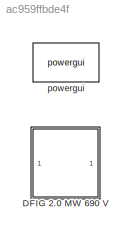
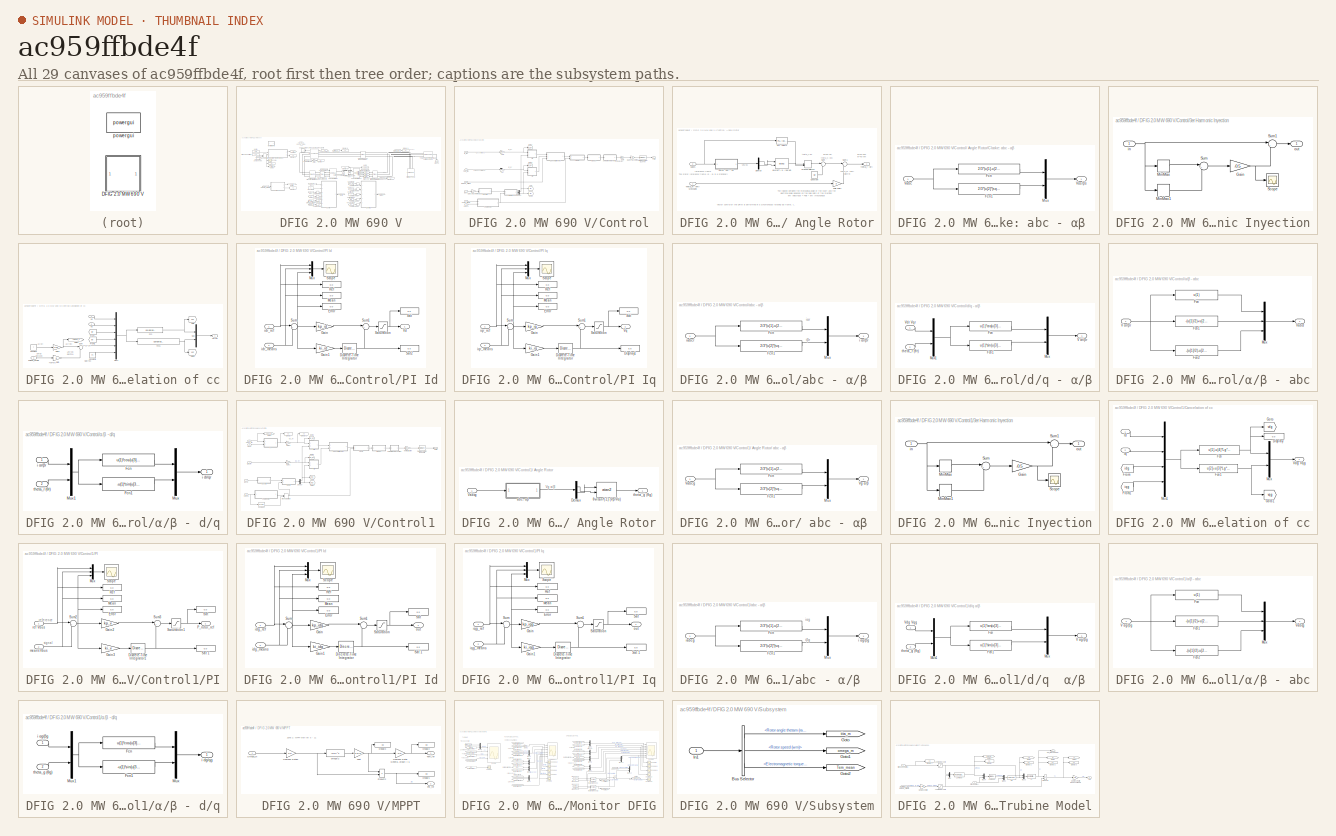
[diagram: thumbnail index - all 29 canvases of the model, root first then tree order]
MODEL slx_ac959ffbde4f
KIND model
CONFIG AbsTol = auto
CONFIG EnableMultiTasking = on
CONFIG FixedStep = auto
CONFIG MaxStep = auto
CONFIG MinStep = auto
CONFIG RelTol = 1e-3
CONFIG SampleTimeConstraint = Unconstrained
CONFIG Solver = ode45
CONFIG SolverName = ode45
CONFIG StartTime = 0.0
CONFIG StopTime = 4
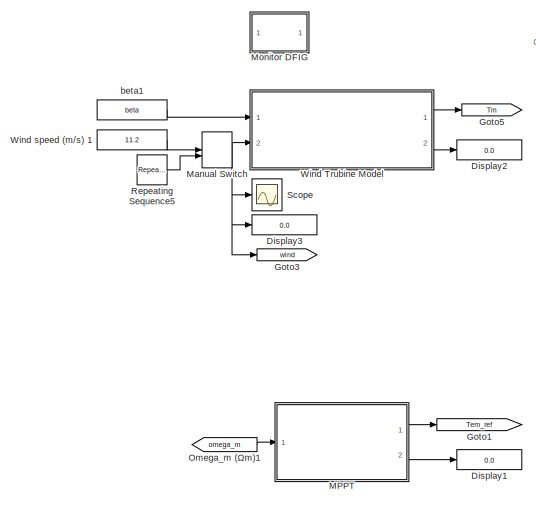
[diagram: DFIG 2.0 MW 690 V - part 1/2, middle left region]
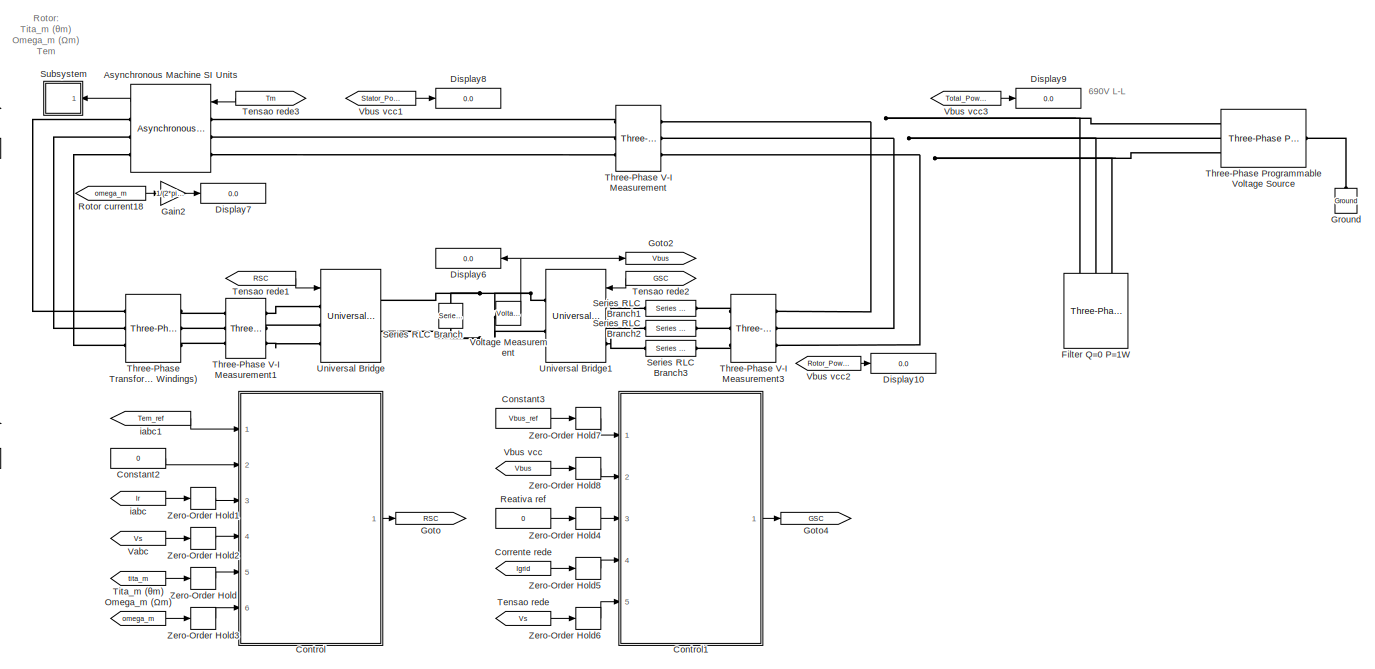
[diagram: DFIG 2.0 MW 690 V - part 2/2, center side, full height]
BLOCK [SubSystem] DFIG 2.0 MW 690 V
  Ports = []
  RequestExecContextInheritance = off
  Variant = off
BLOCK [Reference] DFIG 2.0 MW 690 V/Asynchronous Machine SI Units  REF=powerlib/Machines/Asynchronous Machine
SI Units
  AttributesFormatString = \n
  Ports = [1, 1, 0, 0, 0, 3, 3]
  SourceBlock = powerlib/Machines/Asynchronous Machine\nSI Units
  SourceProductBaseCode = PS
  SourceProductName = Simscape Power Systems
  SourceType = Asynchronous Machine
BLOCK [Constant] DFIG 2.0 MW 690 V/Constant2
  Value = 0
BLOCK [Constant] DFIG 2.0 MW 690 V/Constant3
  Value = Vbus_ref
BLOCK [SubSystem] DFIG 2.0 MW 690 V/Control
  Ports = [6, 1]
  RequestExecContextInheritance = off
  Variant = off
BLOCK [SubSystem] DFIG 2.0 MW 690 V/Control/ Angle Rotor
  Ports = [2, 1]
  RequestExecContextInheritance = off
  Variant = off
BLOCK [SubSystem] DFIG 2.0 MW 690 V/Control/ Angle Rotor/Clarke: abc - αβ 
  Ports = [1, 1]
  RequestExecContextInheritance = off
  Variant = off
BLOCK [Fcn] DFIG 2.0 MW 690 V/Control/ Angle Rotor/Clarke: abc - αβ /Fcn
  Expr = 2/3*(u[1]-u[2]/2-u[3]/2)
BLOCK [Fcn] DFIG 2.0 MW 690 V/Control/ Angle Rotor/Clarke: abc - αβ /Fcn1
  Expr = 2/3*(u[2]*(sqrt(3)/2)-u[3]*(sqrt(3)/2))
BLOCK [Mux] DFIG 2.0 MW 690 V/Control/ Angle Rotor/Clarke: abc - αβ /Mux
  DisplayOption = bar
  Inputs = 2
  Ports = [2, 1]
BLOCK [Inport] DFIG 2.0 MW 690 V/Control/ Angle Rotor/Clarke: abc - αβ /Vabc
  IconDisplay = Port number
BLOCK [Outport] DFIG 2.0 MW 690 V/Control/ Angle Rotor/Clarke: abc - αβ /Vαs//βs 
  IconDisplay = Port number
BLOCK [Constant] DFIG 2.0 MW 690 V/Control/ Angle Rotor/Constant
  Value = pi/2
BLOCK [Demux] DFIG 2.0 MW 690 V/Control/ Angle Rotor/Demux
  DisplayOption = bar
  Outputs = 2
  Ports = [1, 2]
BLOCK [ManualSwitch] DFIG 2.0 MW 690 V/Control/ Angle Rotor/Manual Switch1
  CurrentSetting = 0
BLOCK [Reference] DFIG 2.0 MW 690 V/Control/ Angle Rotor/PLL (3ph)1  REF=powerlib_meascontrol/PLL/PLL
(3ph)
  Commented = on
  Ports = [1, 2]
  SourceBlock = powerlib_meascontrol/PLL/PLL\n(3ph)
  SourceProductBaseCode = PS
  SourceProductName = Simscape Power Systems
  SourceType = PLL (3ph)
BLOCK [Gain] DFIG 2.0 MW 690 V/Control/ Angle Rotor/Pole Pairs
  Gain = p
  OutDataTypeStr = Inherit: Inherit via internal rule
  ParamDataTypeStr = Inherit: Inherit via internal rule
  SaturateOnIntegerOverflow = off
BLOCK [Sum] DFIG 2.0 MW 690 V/Control/ Angle Rotor/Sum
  IconShape = round
  InputSameDT = off
  Inputs = |+-
  OutDataTypeStr = Inherit: Inherit via internal rule
  Ports = [2, 1]
  SaturateOnIntegerOverflow = off
BLOCK [Sum] DFIG 2.0 MW 690 V/Control/ Angle Rotor/Sum1
  IconShape = round
  InputSameDT = off
  Inputs = |+-
  OutDataTypeStr = Inherit: Inherit via internal rule
  Ports = [2, 1]
  SaturateOnIntegerOverflow = off
BLOCK [Inport] DFIG 2.0 MW 690 V/Control/ Angle Rotor/Theta_m (θm) Mechanic
  IconDisplay = Port number
BLOCK [Inport] DFIG 2.0 MW 690 V/Control/ Angle Rotor/Vabcs
  IconDisplay = Port number
  Port = 2
BLOCK [Outport] DFIG 2.0 MW 690 V/Control/ Angle Rotor/theta_r (θr)
  IconDisplay = Port number
BLOCK [Trigonometry] DFIG 2.0 MW 690 V/Control/ Angle Rotor/θv=tan^(-1) (Vβ//Vα)
  Operator = atan2
  Ports = [2, 1]
BLOCK [Gain] DFIG 2.0 MW 690 V/Control/1//kQ
  Gain = 1/(-1.5*(f*2*pi)*Lm/Ls*Fs)
  OutDataTypeStr = Inherit: Inherit via internal rule
  ParamDataTypeStr = Inherit: Inherit via internal rule
  SaturateOnIntegerOverflow = off
BLOCK [Gain] DFIG 2.0 MW 690 V/Control/1//kT
  Gain = 1/(-1.5*p*(Lm/Ls)*Fs)
  OutDataTypeStr = Inherit: Inherit via internal rule
  ParamDataTypeStr = Inherit: Inherit via internal rule
  SaturateOnIntegerOverflow = off
BLOCK [SubSystem] DFIG 2.0 MW 690 V/Control/3er Harmonic Inyection
  Ports = [1, 1]
  RequestExecContextInheritance = off
  Variant = off
BLOCK [Gain] DFIG 2.0 MW 690 V/Control/3er Harmonic Inyection/Gain
  Gain = -0.5
  OutDataTypeStr = Inherit: Inherit via internal rule
  ParamDataTypeStr = Inherit: Inherit via internal rule
  SaturateOnIntegerOverflow = off
BLOCK [MinMax] DFIG 2.0 MW 690 V/Control/3er Harmonic Inyection/MinMax
  InputSameDT = off
  Ports = [1, 1]
  SaturateOnIntegerOverflow = off
BLOCK [MinMax] DFIG 2.0 MW 690 V/Control/3er Harmonic Inyection/MinMax1
  Function = max
  InputSameDT = off
  Ports = [1, 1]
  SaturateOnIntegerOverflow = off
BLOCK [Scope] DFIG 2.0 MW 690 V/Control/3er Harmonic Inyection/Scope
  NumInputPorts = 1
  Ports = [1]
  ScopeSpecificationString = C++SS(StrPVP('Open','off'),StrPVP('TimeRange','auto'),StrPVP('TickLabels','OneTimeTick'),StrPVP('ShowLegends','off'),StrPVP('LimitDataPoints','off'),StrPVP('MaxDataPoints','5000'),StrPVP('SaveToWorkspace','off'),StrPVP('SaveName','ScopeData2'),StrPVP('YMin','-208.5095'),StrPVP('YMax','235.47421'),StrPVP('BlockParamSampleInput','off'),StrPVP('BlockParamSampleTime','-1'),StrPVP('ZoomMode','on'),StrP...<+581ch>
BLOCK [Sum] DFIG 2.0 MW 690 V/Control/3er Harmonic Inyection/Sum
  IconShape = round
  InputSameDT = off
  Inputs = |++
  OutDataTypeStr = Inherit: Inherit via internal rule
  Ports = [2, 1]
  SaturateOnIntegerOverflow = off
BLOCK [Sum] DFIG 2.0 MW 690 V/Control/3er Harmonic Inyection/Sum1
  IconShape = round
  InputSameDT = off
  Inputs = |++
  OutDataTypeStr = Inherit: Inherit via internal rule
  Ports = [2, 1]
  SaturateOnIntegerOverflow = off
BLOCK [Inport] DFIG 2.0 MW 690 V/Control/3er Harmonic Inyection/in
  IconDisplay = Port number
BLOCK [Outport] DFIG 2.0 MW 690 V/Control/3er Harmonic Inyection/out
  IconDisplay = Port number
BLOCK [SubSystem] DFIG 2.0 MW 690 V/Control/Cancelation of cc
  Ports = [3, 1]
  RequestExecContextInheritance = off
  Variant = off
BLOCK [Constant] DFIG 2.0 MW 690 V/Control/Cancelation of cc/Constant
  Value = f
BLOCK [Constant] DFIG 2.0 MW 690 V/Control/Cancelation of cc/Constant1
  Value = Fs
BLOCK [Fcn] DFIG 2.0 MW 690 V/Control/Cancelation of cc/Fcn
  Expr = u[1]-u[5]*sigma*Lr*u[4]
BLOCK [Fcn] DFIG 2.0 MW 690 V/Control/Cancelation of cc/Fcn1
  Expr = u[2]+u[5]*sigma*Lr*u[3]+u[5]*(Lm/Ls)*u[6]
BLOCK [From] DFIG 2.0 MW 690 V/Control/Cancelation of cc/From
  GotoTag = idr
  IconDisplay = Signal name
  TagVisibility = global
BLOCK [From] DFIG 2.0 MW 690 V/Control/Cancelation of cc/From1
  GotoTag = iqr
  IconDisplay = Signal name
  TagVisibility = global
BLOCK [Gain] DFIG 2.0 MW 690 V/Control/Cancelation of cc/Gain
  Gain = p
  OutDataTypeStr = Inherit: Inherit via internal rule
  ParamDataTypeStr = Inherit: Inherit via internal rule
  SaturateOnIntegerOverflow = off
BLOCK [Gain] DFIG 2.0 MW 690 V/Control/Cancelation of cc/Gain1
  Gain = 2*pi
  OutDataTypeStr = Inherit: Inherit via internal rule
  ParamDataTypeStr = Inherit: Inherit via internal rule
  SaturateOnIntegerOverflow = off
BLOCK [Goto] DFIG 2.0 MW 690 V/Control/Cancelation of cc/Goto
  GotoTag = vdr
  TagVisibility = global
BLOCK [Goto] DFIG 2.0 MW 690 V/Control/Cancelation of cc/Goto1
  GotoTag = vqr
  TagVisibility = global
BLOCK [Goto] DFIG 2.0 MW 690 V/Control/Cancelation of cc/Goto3
  GotoTag = omega_s
  TagVisibility = global
BLOCK [Mux] DFIG 2.0 MW 690 V/Control/Cancelation of cc/Mux
  DisplayOption = bar
  Inputs = 2
  Ports = [2, 1]
BLOCK [Mux] DFIG 2.0 MW 690 V/Control/Cancelation of cc/Mux1
  DisplayOption = bar
  Inputs = 6
  Ports = [6, 1]
BLOCK [Sum] DFIG 2.0 MW 690 V/Control/Cancelation of cc/Sum
  IconShape = round
  InputSameDT = off
  Inputs = |+-
  OutDataTypeStr = Inherit: Inherit via internal rule
  Ports = [2, 1]
  SaturateOnIntegerOverflow = off
BLOCK [Inport] DFIG 2.0 MW 690 V/Control/Cancelation of cc/Vd
  IconDisplay = Port number
BLOCK [Outport] DFIG 2.0 MW 690 V/Control/Cancelation of cc/Vdr  Vqr
  IconDisplay = Port number
BLOCK [Inport] DFIG 2.0 MW 690 V/Control/Cancelation of cc/Vq
  IconDisplay = Port number
  Port = 2
BLOCK [Inport] DFIG 2.0 MW 690 V/Control/Cancelation of cc/omega_m (Ωm)
  IconDisplay = Port number
  Port = 3
BLOCK [Demux] DFIG 2.0 MW 690 V/Control/Demux
  DisplayOption = bar
  Outputs = 2
  Ports = [1, 2]
BLOCK [Gain] DFIG 2.0 MW 690 V/Control/Gain
  Gain = 1/(Vbus_ref/2)
  OutDataTypeStr = Inherit: Inherit via internal rule
  ParamDataTypeStr = Inherit: Inherit via internal rule
  SaturateOnIntegerOverflow = off
BLOCK [Gain] DFIG 2.0 MW 690 V/Control/Gain 1 Trasnformer
  Gain = 1/u
  OutDataTypeStr = Inherit: Inherit via internal rule
  ParamDataTypeStr = Inherit: Inherit via internal rule
  SaturateOnIntegerOverflow = off
BLOCK [Gain] DFIG 2.0 MW 690 V/Control/Gain 2 Trasnformer
  Gain = 1/u
  OutDataTypeStr = Inherit: Inherit via internal rule
  ParamDataTypeStr = Inherit: Inherit via internal rule
  SaturateOnIntegerOverflow = off
BLOCK [Goto] DFIG 2.0 MW 690 V/Control/Goto
  GotoTag = idr
  TagVisibility = global
BLOCK [Goto] DFIG 2.0 MW 690 V/Control/Goto1
  GotoTag = iqr
  TagVisibility = global
BLOCK [Goto] DFIG 2.0 MW 690 V/Control/Goto2
  GotoTag = idr_ref
  TagVisibility = global
BLOCK [Goto] DFIG 2.0 MW 690 V/Control/Goto3
  GotoTag = iqr_ref
  TagVisibility = global
BLOCK [Inport] DFIG 2.0 MW 690 V/Control/Omega_m (Ωm) 
  IconDisplay = Port number
  Port = 6
BLOCK [SubSystem] DFIG 2.0 MW 690 V/Control/PI Id
  Ports = [2, 1]
  RequestExecContextInheritance = off
  Variant = off
BLOCK [DiscreteIntegrator] DFIG 2.0 MW 690 V/Control/PI Id/Discrete-Time Integrator
  ICPrevOutput = DiscIntNeverNeededParam
  ICPrevScaledInput = DiscIntNeverNeededParam
  LimitOutput = on
  LowerSaturationLimit = -Vbus_ref/sqrt(3)
  Ports = [1, 1]
  SampleTime = 1/fsw
  UpperSaturationLimit = Vbus_ref/sqrt(3)
BLOCK [Display] DFIG 2.0 MW 690 V/Control/PI Id/Error
  Decimation = 1
  Ports = [1]
BLOCK [Gain] DFIG 2.0 MW 690 V/Control/PI Id/Gain
  Gain = kp_id
  OutDataTypeStr = Inherit: Inherit via internal rule
  ParamDataTypeStr = Inherit: Inherit via internal rule
  SaturateOnIntegerOverflow = off
BLOCK [Gain] DFIG 2.0 MW 690 V/Control/PI Id/Gain1
  Gain = ki_id
  OutDataTypeStr = Inherit: Inherit via internal rule
  ParamDataTypeStr = Inherit: Inherit via internal rule
  SaturateOnIntegerOverflow = off
BLOCK [Display] DFIG 2.0 MW 690 V/Control/PI Id/Mean
  Decimation = 1
  Ports = [1]
BLOCK [Mux] DFIG 2.0 MW 690 V/Control/PI Id/Mux
  DisplayOption = bar
  Inputs = 3
  Ports = [3, 1]
BLOCK [Display] DFIG 2.0 MW 690 V/Control/PI Id/Ref
  Decimation = 1
  Ports = [1]
BLOCK [Display] DFIG 2.0 MW 690 V/Control/PI Id/Sat
  Decimation = 1
  Ports = [1]
BLOCK [Display] DFIG 2.0 MW 690 V/Control/PI Id/Sat2
  Decimation = 1
  Ports = [1]
BLOCK [Saturate] DFIG 2.0 MW 690 V/Control/PI Id/Saturation
  InputPortMap = u0
  LowerLimit = -Vbus_ref/sqrt(3)
  Ports = [1, 1]
  UpperLimit = Vbus_ref/sqrt(3)
BLOCK [Scope] DFIG 2.0 MW 690 V/Control/PI Id/Scope
  NumInputPorts = 1
  Ports = [1]
  ScopeSpecificationString = C++SS(StrPVP('Open','off'),StrPVP('TimeRange','auto'),StrPVP('TickLabels','OneTimeTick'),StrPVP('ShowLegends','off'),StrPVP('LimitDataPoints','off'),StrPVP('MaxDataPoints','5000'),StrPVP('SaveToWorkspace','off'),StrPVP('SaveName','ScopeData1'),StrPVP('YMin','-14704.68799'),StrPVP('YMax','14704.68799'),StrPVP('BlockParamSampleInput','off'),StrPVP('BlockParamSampleTime','-1'),StrPVP('ZoomMode','on')...<+589ch>
BLOCK [Sum] DFIG 2.0 MW 690 V/Control/PI Id/Sum
  IconShape = round
  InputSameDT = off
  Inputs = |+-
  OutDataTypeStr = Inherit: Inherit via internal rule
  Ports = [2, 1]
  SaturateOnIntegerOverflow = off
BLOCK [Sum] DFIG 2.0 MW 690 V/Control/PI Id/Sum1
  IconShape = round
  InputSameDT = off
  Inputs = |++
  OutDataTypeStr = Inherit: Inherit via internal rule
  Ports = [2, 1]
  SaturateOnIntegerOverflow = off
BLOCK [Outport] DFIG 2.0 MW 690 V/Control/PI Id/Vd
  IconDisplay = Port number
BLOCK [Inport] DFIG 2.0 MW 690 V/Control/PI Id/idr_means
  IconDisplay = Port number
  Port = 2
BLOCK [Inport] DFIG 2.0 MW 690 V/Control/PI Id/idr_ref
  IconDisplay = Port number
BLOCK [SubSystem] DFIG 2.0 MW 690 V/Control/PI Iq
  Ports = [2, 1]
  RequestExecContextInheritance = off
  Variant = off
BLOCK [DiscreteIntegrator] DFIG 2.0 MW 690 V/Control/PI Iq/Discrete-Time Integrator
  ICPrevOutput = DiscIntNeverNeededParam
  ICPrevScaledInput = DiscIntNeverNeededParam
  LimitOutput = on
  LowerSaturationLimit = -Vbus_ref/sqrt(3)
  Ports = [1, 1]
  SampleTime = 1/fsw
  UpperSaturationLimit = Vbus_ref/sqrt(3)
BLOCK [Display] DFIG 2.0 MW 690 V/Control/PI Iq/Display1
  Decimation = 1
  Ports = [1]
BLOCK [Display] DFIG 2.0 MW 690 V/Control/PI Iq/Error
  Decimation = 1
  Ports = [1]
BLOCK [Gain] DFIG 2.0 MW 690 V/Control/PI Iq/Gain
  Gain = kp_iq
  OutDataTypeStr = Inherit: Inherit via internal rule
  ParamDataTypeStr = Inherit: Inherit via internal rule
  SaturateOnIntegerOverflow = off
BLOCK [Gain] DFIG 2.0 MW 690 V/Control/PI Iq/Gain1
  Gain = ki_iq
  OutDataTypeStr = Inherit: Inherit via internal rule
  ParamDataTypeStr = Inherit: Inherit via internal rule
  SaturateOnIntegerOverflow = off
BLOCK [Display] DFIG 2.0 MW 690 V/Control/PI Iq/Mean
  Decimation = 1
  Ports = [1]
BLOCK [Mux] DFIG 2.0 MW 690 V/Control/PI Iq/Mux
  DisplayOption = bar
  Inputs = 3
  Ports = [3, 1]
BLOCK [Display] DFIG 2.0 MW 690 V/Control/PI Iq/Ref
  Decimation = 1
  Ports = [1]
BLOCK [Display] DFIG 2.0 MW 690 V/Control/PI Iq/Sat
  Decimation = 1
  Ports = [1]
BLOCK [Saturate] DFIG 2.0 MW 690 V/Control/PI Iq/Saturation
  InputPortMap = u0
  LowerLimit = -Vbus_ref/sqrt(3)
  Ports = [1, 1]
  UpperLimit = Vbus_ref/sqrt(3)
BLOCK [Scope] DFIG 2.0 MW 690 V/Control/PI Iq/Scope
  NumInputPorts = 1
  Ports = [1]
  ScopeSpecificationString = C++SS(StrPVP('Open','off'),StrPVP('TimeRange','auto'),StrPVP('TickLabels','OneTimeTick'),StrPVP('ShowLegends','off'),StrPVP('LimitDataPoints','off'),StrPVP('MaxDataPoints','5000'),StrPVP('SaveToWorkspace','off'),StrPVP('SaveName','ScopeData1'),StrPVP('YMin','-14704.68799'),StrPVP('YMax','14704.68799'),StrPVP('BlockParamSampleInput','off'),StrPVP('BlockParamSampleTime','-1'),StrPVP('ZoomMode','on')...<+589ch>
BLOCK [Sum] DFIG 2.0 MW 690 V/Control/PI Iq/Sum
  IconShape = round
  InputSameDT = off
  Inputs = |+-
  OutDataTypeStr = Inherit: Inherit via internal rule
  Ports = [2, 1]
  SaturateOnIntegerOverflow = off
BLOCK [Sum] DFIG 2.0 MW 690 V/Control/PI Iq/Sum1
  IconShape = round
  InputSameDT = off
  Inputs = |++
  OutDataTypeStr = Inherit: Inherit via internal rule
  Ports = [2, 1]
  SaturateOnIntegerOverflow = off
BLOCK [Outport] DFIG 2.0 MW 690 V/Control/PI Iq/Vq
  IconDisplay = Port number
BLOCK [Inport] DFIG 2.0 MW 690 V/Control/PI Iq/iqr_means
  IconDisplay = Port number
  Port = 2
BLOCK [Inport] DFIG 2.0 MW 690 V/Control/PI Iq/iqr_ref
  IconDisplay = Port number
BLOCK [Outport] DFIG 2.0 MW 690 V/Control/PWM
  IconDisplay = Port number
BLOCK [Reference] DFIG 2.0 MW 690 V/Control/PWM Generator (2-Level)  REF=powerlib_meascontrol/Pulse & Signal
Generators/PWM Generator
(2-Level)
  Ports = [1, 1]
  SourceBlock = powerlib_meascontrol/Pulse & Signal\nGenerators/PWM Generator\n(2-Level)
  SourceProductBaseCode = PS
  SourceProductName = Simscape Power Systems
  SourceType = PWM Generator (2-Level)
BLOCK [Inport] DFIG 2.0 MW 690 V/Control/Q_ref
  IconDisplay = Port number
  Port = 2
BLOCK [Inport] DFIG 2.0 MW 690 V/Control/Tem_ref
  IconDisplay = Port number
BLOCK [Inport] DFIG 2.0 MW 690 V/Control/Theta_m (θm)
  IconDisplay = Port number
  Port = 5
BLOCK [Inport] DFIG 2.0 MW 690 V/Control/Vabcs
  IconDisplay = Port number
  Port = 4
BLOCK [SubSystem] DFIG 2.0 MW 690 V/Control/abc - α//β 
  Ports = [1, 1]
  RequestExecContextInheritance = off
  Variant = off
BLOCK [Fcn] DFIG 2.0 MW 690 V/Control/abc - α//β /Fcn
  Expr = 2/3*(u[1]-u[2]/2-u[3]/2)
BLOCK [Fcn] DFIG 2.0 MW 690 V/Control/abc - α//β /Fcn1
  Expr = 2/3*(u[2]*(sqrt(3)/2)-u[3]*(sqrt(3)/2))
BLOCK [Mux] DFIG 2.0 MW 690 V/Control/abc - α//β /Mux
  DisplayOption = bar
  Inputs = 2
  Ports = [2, 1]
BLOCK [Outport] DFIG 2.0 MW 690 V/Control/abc - α//β /i αr//βr
  IconDisplay = Port number
BLOCK [Inport] DFIG 2.0 MW 690 V/Control/abc - α//β /iabcr
  IconDisplay = Port number
BLOCK [SubSystem] DFIG 2.0 MW 690 V/Control/d//q - α//β
  Ports = [2, 1]
  RequestExecContextInheritance = off
  Variant = off
BLOCK [Fcn] DFIG 2.0 MW 690 V/Control/d//q - α//β/Fcn
  Expr = u(1)*cos(u[3])-u[2]*sin(u[3])
BLOCK [Fcn] DFIG 2.0 MW 690 V/Control/d//q - α//β/Fcn1
  Expr = u(1)*sin(u[3])+u[2]*cos(u[3])
BLOCK [Mux] DFIG 2.0 MW 690 V/Control/d//q - α//β/Mux
  DisplayOption = bar
  Inputs = 2
  Ports = [2, 1]
BLOCK [Mux] DFIG 2.0 MW 690 V/Control/d//q - α//β/Mux1
  DisplayOption = bar
  Inputs = 2
  Ports = [2, 1]
BLOCK [Outport] DFIG 2.0 MW 690 V/Control/d//q - α//β/V αr//βr
  IconDisplay = Port number
BLOCK [Inport] DFIG 2.0 MW 690 V/Control/d//q - α//β/Vdr  Vqr
  IconDisplay = Port number
BLOCK [Inport] DFIG 2.0 MW 690 V/Control/d//q - α//β/theta_r (θr)
  IconDisplay = Port number
  Port = 2
BLOCK [Inport] DFIG 2.0 MW 690 V/Control/iabcr
  IconDisplay = Port number
  Port = 3
BLOCK [SubSystem] DFIG 2.0 MW 690 V/Control/α//β - abc
  Ports = [1, 1]
  RequestExecContextInheritance = off
  Variant = off
BLOCK [Fcn] DFIG 2.0 MW 690 V/Control/α//β - abc/Fcn
  Expr = u(1)
BLOCK [Fcn] DFIG 2.0 MW 690 V/Control/α//β - abc/Fcn1
  Expr = -(u[1]/2)+u[2]*(sqrt(3)/2)
BLOCK [Fcn] DFIG 2.0 MW 690 V/Control/α//β - abc/Fcn2
  Expr = -(u[1]/2)-u[2]*(sqrt(3)/2)
BLOCK [Mux] DFIG 2.0 MW 690 V/Control/α//β - abc/Mux
  DisplayOption = bar
  Inputs = 3
  Ports = [3, 1]
BLOCK [Inport] DFIG 2.0 MW 690 V/Control/α//β - abc/V αr//βr
  IconDisplay = Port number
BLOCK [Outport] DFIG 2.0 MW 690 V/Control/α//β - abc/Vabcr
  IconDisplay = Port number
BLOCK [SubSystem] DFIG 2.0 MW 690 V/Control/α//β - d//q
  Ports = [2, 1]
  RequestExecContextInheritance = off
  Variant = off
BLOCK [Fcn] DFIG 2.0 MW 690 V/Control/α//β - d//q/Fcn
  Expr = u(1)*cos(u[3])+u[2]*sin(u[3])
BLOCK [Fcn] DFIG 2.0 MW 690 V/Control/α//β - d//q/Fcn1
  Expr = -u(1)*sin(u[3])+u[2]*cos(u[3])
BLOCK [Mux] DFIG 2.0 MW 690 V/Control/α//β - d//q/Mux
  DisplayOption = bar
  Inputs = 2
  Ports = [2, 1]
BLOCK [Mux] DFIG 2.0 MW 690 V/Control/α//β - d//q/Mux1
  DisplayOption = bar
  Inputs = 2
  Ports = [2, 1]
BLOCK [Outport] DFIG 2.0 MW 690 V/Control/α//β - d//q/i dr//qr
  IconDisplay = Port number
BLOCK [Inport] DFIG 2.0 MW 690 V/Control/α//β - d//q/i αr//βr
  IconDisplay = Port number
BLOCK [Inport] DFIG 2.0 MW 690 V/Control/α//β - d//q/theta_r (θr)
  IconDisplay = Port number
  Port = 2
BLOCK [SubSystem] DFIG 2.0 MW 690 V/Control1
  Ports = [5, 1]
  RequestExecContextInheritance = off
  Variant = off
BLOCK [SubSystem] DFIG 2.0 MW 690 V/Control1/ Angle Rotor
  Ports = [1, 1]
  RequestExecContextInheritance = off
  Variant = off
BLOCK [SubSystem] DFIG 2.0 MW 690 V/Control1/ Angle Rotor/ abc - αβ 
  Ports = [1, 1]
  RequestExecContextInheritance = off
  Variant = off
BLOCK [Fcn] DFIG 2.0 MW 690 V/Control1/ Angle Rotor/ abc - αβ /Fcn
  Expr = 2/3*(u[1]-u[2]/2-u[3]/2)
BLOCK [Fcn] DFIG 2.0 MW 690 V/Control1/ Angle Rotor/ abc - αβ /Fcn1
  Expr = 2/3*(u[2]*(sqrt(3)/2)-u[3]*(sqrt(3)/2))
BLOCK [Mux] DFIG 2.0 MW 690 V/Control1/ Angle Rotor/ abc - αβ /Mux
  DisplayOption = bar
  Inputs = 2
  Ports = [2, 1]
BLOCK [Inport] DFIG 2.0 MW 690 V/Control1/ Angle Rotor/ abc - αβ /Vabcg
  IconDisplay = Port number
BLOCK [Outport] DFIG 2.0 MW 690 V/Control1/ Angle Rotor/ abc - αβ /Vg α//β 
  IconDisplay = Port number
BLOCK [Demux] DFIG 2.0 MW 690 V/Control1/ Angle Rotor/Demux
  DisplayOption = bar
  Outputs = 2
  Ports = [1, 2]
BLOCK [Inport] DFIG 2.0 MW 690 V/Control1/ Angle Rotor/Vabcg 
  IconDisplay = Port number
BLOCK [Outport] DFIG 2.0 MW 690 V/Control1/ Angle Rotor/theta_g (θg)
  IconDisplay = Port number
BLOCK [Trigonometry] DFIG 2.0 MW 690 V/Control1/ Angle Rotor/θv=tan^(-1) (Vβ//Vα)
  Operator = atan2
  Ports = [2, 1]
BLOCK [SubSystem] DFIG 2.0 MW 690 V/Control1/3er Harmonic Inyection
  Ports = [1, 1]
  RequestExecContextInheritance = off
  Variant = off
BLOCK [Gain] DFIG 2.0 MW 690 V/Control1/3er Harmonic Inyection/Gain
  Gain = -0.5
  OutDataTypeStr = Inherit: Inherit via internal rule
  ParamDataTypeStr = Inherit: Inherit via internal rule
  SaturateOnIntegerOverflow = off
BLOCK [MinMax] DFIG 2.0 MW 690 V/Control1/3er Harmonic Inyection/MinMax
  InputSameDT = off
  Ports = [1, 1]
  SaturateOnIntegerOverflow = off
BLOCK [MinMax] DFIG 2.0 MW 690 V/Control1/3er Harmonic Inyection/MinMax1
  Function = max
  InputSameDT = off
  Ports = [1, 1]
  SaturateOnIntegerOverflow = off
BLOCK [Scope] DFIG 2.0 MW 690 V/Control1/3er Harmonic Inyection/Scope
  NumInputPorts = 1
  Ports = [1]
  ScopeSpecificationString = C++SS(StrPVP('Open','off'),StrPVP('TimeRange','auto'),StrPVP('TickLabels','OneTimeTick'),StrPVP('ShowLegends','off'),StrPVP('LimitDataPoints','off'),StrPVP('MaxDataPoints','5000'),StrPVP('SaveToWorkspace','off'),StrPVP('SaveName','ScopeData2'),StrPVP('YMin','-208.5095'),StrPVP('YMax','235.47421'),StrPVP('BlockParamSampleInput','off'),StrPVP('BlockParamSampleTime','-1'),StrPVP('ZoomMode','on'),StrP...<+581ch>
BLOCK [Sum] DFIG 2.0 MW 690 V/Control1/3er Harmonic Inyection/Sum
  IconShape = round
  InputSameDT = off
  Inputs = |++
  OutDataTypeStr = Inherit: Inherit via internal rule
  Ports = [2, 1]
  SaturateOnIntegerOverflow = off
BLOCK [Sum] DFIG 2.0 MW 690 V/Control1/3er Harmonic Inyection/Sum1
  IconShape = round
  InputSameDT = off
  Inputs = |++
  OutDataTypeStr = Inherit: Inherit via internal rule
  Ports = [2, 1]
  SaturateOnIntegerOverflow = off
BLOCK [Inport] DFIG 2.0 MW 690 V/Control1/3er Harmonic Inyection/in
  IconDisplay = Port number
BLOCK [Outport] DFIG 2.0 MW 690 V/Control1/3er Harmonic Inyection/out
  IconDisplay = Port number
BLOCK [SubSystem] DFIG 2.0 MW 690 V/Control1/Cancelation of cc
  Ports = [2, 1]
  RequestExecContextInheritance = off
  Variant = off
BLOCK [Display] DFIG 2.0 MW 690 V/Control1/Cancelation of cc/Display
  Decimation = 1
  Ports = [1]
BLOCK [Fcn] DFIG 2.0 MW 690 V/Control1/Cancelation of cc/Fcn
  Expr = u[1]-u[4]*Lg*(2*pi*f)
BLOCK [Fcn] DFIG 2.0 MW 690 V/Control1/Cancelation of cc/Fcn1
  Expr = u[2]+u[3]*Lg*(2*pi*f)
BLOCK [From] DFIG 2.0 MW 690 V/Control1/Cancelation of cc/From
  GotoTag = idg
  IconDisplay = Signal name
  TagVisibility = global
BLOCK [From] DFIG 2.0 MW 690 V/Control1/Cancelation of cc/From1
  GotoTag = iqg
  IconDisplay = Signal name
  TagVisibility = global
BLOCK [Goto] DFIG 2.0 MW 690 V/Control1/Cancelation of cc/Goto
  GotoTag = vdg
  TagVisibility = global
BLOCK [Goto] DFIG 2.0 MW 690 V/Control1/Cancelation of cc/Goto1
  GotoTag = vqg
  TagVisibility = global
BLOCK [Inport] DFIG 2.0 MW 690 V/Control1/Cancelation of cc/Id
  IconDisplay = Port number
BLOCK [Inport] DFIG 2.0 MW 690 V/Control1/Cancelation of cc/Iq
  IconDisplay = Port number
  Port = 2
BLOCK [Mux] DFIG 2.0 MW 690 V/Control1/Cancelation of cc/Mux
  DisplayOption = bar
  Inputs = 2
  Ports = [2, 1]
BLOCK [Mux] DFIG 2.0 MW 690 V/Control1/Cancelation of cc/Mux1
  DisplayOption = bar
  Ports = [4, 1]
BLOCK [Outport] DFIG 2.0 MW 690 V/Control1/Cancelation of cc/Vdg  Vqg
  IconDisplay = Port number
BLOCK [Demux] DFIG 2.0 MW 690 V/Control1/Demux
  DisplayOption = bar
  Outputs = 2
  Ports = [1, 2]
BLOCK [Display] DFIG 2.0 MW 690 V/Control1/Display
  Decimation = 1
  Ports = [1]
BLOCK [Display] DFIG 2.0 MW 690 V/Control1/Display1
  Decimation = 1
  Ports = [1]
BLOCK [Gain] DFIG 2.0 MW 690 V/Control1/Gain1
  Gain = Kqg
  OutDataTypeStr = Inherit: Inherit via internal rule
  ParamDataTypeStr = Inherit: Inherit via internal rule
  SaturateOnIntegerOverflow = off
BLOCK [Gain] DFIG 2.0 MW 690 V/Control1/Gain2
  Gain = Kpg
  OutDataTypeStr = Inherit: Inherit via internal rule
  ParamDataTypeStr = Inherit: Inherit via internal rule
  SaturateOnIntegerOverflow = off
BLOCK [Goto] DFIG 2.0 MW 690 V/Control1/Goto
  GotoTag = idg
  TagVisibility = global
BLOCK [Goto] DFIG 2.0 MW 690 V/Control1/Goto1
  GotoTag = iqg
  TagVisibility = global
BLOCK [Goto] DFIG 2.0 MW 690 V/Control1/Goto2
  GotoTag = idg_ref
  TagVisibility = global
BLOCK [Goto] DFIG 2.0 MW 690 V/Control1/Goto3
  GotoTag = iqg_ref
  TagVisibility = global
BLOCK [Goto] DFIG 2.0 MW 690 V/Control1/Goto4
  GotoTag = Vbus_ref
  TagVisibility = global
BLOCK [ManualSwitch] DFIG 2.0 MW 690 V/Control1/Manual Switch
BLOCK [Gain] DFIG 2.0 MW 690 V/Control1/Normalization
  Gain = 1/(Vbus_ref/2)
  OutDataTypeStr = Inherit: Inherit via internal rule
  ParamDataTypeStr = Inherit: Inherit via internal rule
  SaturateOnIntegerOverflow = off
BLOCK [SubSystem] DFIG 2.0 MW 690 V/Control1/PI
  Ports = [2, 1]
  RequestExecContextInheritance = off
  Variant = off
BLOCK [SubSystem] DFIG 2.0 MW 690 V/Control1/PI Id
  Ports = [2, 1]
  RequestExecContextInheritance = off
  Variant = off
BLOCK [DiscreteIntegrator] DFIG 2.0 MW 690 V/Control1/PI Id/Discrete-Time Integrator
  ICPrevOutput = DiscIntNeverNeededParam
  ICPrevScaledInput = DiscIntNeverNeededParam
  LimitOutput = on
  LowerSaturationLimit = -Vbus_ref/sqrt(3)*2
  Ports = [1, 1]
  SampleTime = 1/fsw
  UpperSaturationLimit = Vbus_ref/sqrt(3)*2
BLOCK [Display] DFIG 2.0 MW 690 V/Control1/PI Id/Error
  Decimation = 1
  Ports = [1]
BLOCK [Gain] DFIG 2.0 MW 690 V/Control1/PI Id/Gain
  Gain = kp_idg
  OutDataTypeStr = Inherit: Inherit via internal rule
  ParamDataTypeStr = Inherit: Inherit via internal rule
  SaturateOnIntegerOverflow = off
BLOCK [Gain] DFIG 2.0 MW 690 V/Control1/PI Id/Gain1
  Gain = ki_idg
  OutDataTypeStr = Inherit: Inherit via internal rule
  ParamDataTypeStr = Inherit: Inherit via internal rule
  SaturateOnIntegerOverflow = off
BLOCK [Display] DFIG 2.0 MW 690 V/Control1/PI Id/Mean
  Decimation = 1
  Ports = [1]
BLOCK [Mux] DFIG 2.0 MW 690 V/Control1/PI Id/Mux
  DisplayOption = bar
  Inputs = 3
  Ports = [3, 1]
BLOCK [Display] DFIG 2.0 MW 690 V/Control1/PI Id/Ref
  Decimation = 1
  Ports = [1]
BLOCK [Display] DFIG 2.0 MW 690 V/Control1/PI Id/Sat
  Decimation = 1
  Ports = [1]
BLOCK [Display] DFIG 2.0 MW 690 V/Control1/PI Id/Sat 1
  Decimation = 1
  Ports = [1]
BLOCK [Saturate] DFIG 2.0 MW 690 V/Control1/PI Id/Saturation
  InputPortMap = u0
  LowerLimit = -Vbus_ref/sqrt(3)*2
  Ports = [1, 1]
  UpperLimit = Vbus_ref/sqrt(3)*2
BLOCK [Scope] DFIG 2.0 MW 690 V/Control1/PI Id/Scope
  NumInputPorts = 1
  Ports = [1]
  ScopeSpecificationString = C++SS(StrPVP('Open','off'),StrPVP('TimeRange','auto'),StrPVP('TickLabels','OneTimeTick'),StrPVP('ShowLegends','off'),StrPVP('LimitDataPoints','off'),StrPVP('MaxDataPoints','5000'),StrPVP('SaveToWorkspace','off'),StrPVP('SaveName','ScopeData2'),StrPVP('YMin','-14704.68799'),StrPVP('YMax','14704.68799'),StrPVP('BlockParamSampleInput','off'),StrPVP('BlockParamSampleTime','-1'),StrPVP('ZoomMode','on')...<+589ch>
BLOCK [Sum] DFIG 2.0 MW 690 V/Control1/PI Id/Sum
  IconShape = round
  InputSameDT = off
  Inputs = |+-
  OutDataTypeStr = Inherit: Inherit via internal rule
  Ports = [2, 1]
  SaturateOnIntegerOverflow = off
BLOCK [Sum] DFIG 2.0 MW 690 V/Control1/PI Id/Sum1
  IconShape = round
  InputSameDT = off
  Inputs = |++
  OutDataTypeStr = Inherit: Inherit via internal rule
  Ports = [2, 1]
  SaturateOnIntegerOverflow = off
BLOCK [Inport] DFIG 2.0 MW 690 V/Control1/PI Id/idg_means
  IconDisplay = Port number
  Port = 2
BLOCK [Inport] DFIG 2.0 MW 690 V/Control1/PI Id/idg_ref
  IconDisplay = Port number
BLOCK [Outport] DFIG 2.0 MW 690 V/Control1/PI Id/out
  IconDisplay = Port number
BLOCK [SubSystem] DFIG 2.0 MW 690 V/Control1/PI Iq
  Ports = [2, 1]
  RequestExecContextInheritance = off
  Variant = off
BLOCK [DiscreteIntegrator] DFIG 2.0 MW 690 V/Control1/PI Iq/Discrete-Time Integrator
  ICPrevOutput = DiscIntNeverNeededParam
  ICPrevScaledInput = DiscIntNeverNeededParam
  LimitOutput = on
  LowerSaturationLimit = -Vbus_ref/sqrt(3)
  Ports = [1, 1]
  SampleTime = 1/fsw
  UpperSaturationLimit = Vbus_ref/sqrt(3)
BLOCK [Display] DFIG 2.0 MW 690 V/Control1/PI Iq/Error
  Decimation = 1
  Ports = [1]
BLOCK [Gain] DFIG 2.0 MW 690 V/Control1/PI Iq/Gain
  Gain = kp_iqg
  OutDataTypeStr = Inherit: Inherit via internal rule
  ParamDataTypeStr = Inherit: Inherit via internal rule
  SaturateOnIntegerOverflow = off
BLOCK [Gain] DFIG 2.0 MW 690 V/Control1/PI Iq/Gain1
  Gain = ki_iqg
  OutDataTypeStr = Inherit: Inherit via internal rule
  ParamDataTypeStr = Inherit: Inherit via internal rule
  SaturateOnIntegerOverflow = off
BLOCK [Display] DFIG 2.0 MW 690 V/Control1/PI Iq/Mean
  Decimation = 1
  Ports = [1]
BLOCK [Mux] DFIG 2.0 MW 690 V/Control1/PI Iq/Mux
  DisplayOption = bar
  Inputs = 3
  Ports = [3, 1]
BLOCK [Display] DFIG 2.0 MW 690 V/Control1/PI Iq/Ref
  Decimation = 1
  Ports = [1]
BLOCK [Display] DFIG 2.0 MW 690 V/Control1/PI Iq/Sat
  Decimation = 1
  Ports = [1]
BLOCK [Display] DFIG 2.0 MW 690 V/Control1/PI Iq/Sat 1
  Decimation = 1
  Ports = [1]
BLOCK [Saturate] DFIG 2.0 MW 690 V/Control1/PI Iq/Saturation
  InputPortMap = u0
  LowerLimit = -Vbus_ref/sqrt(3)
  Ports = [1, 1]
  UpperLimit = Vbus_ref/sqrt(3)
BLOCK [Scope] DFIG 2.0 MW 690 V/Control1/PI Iq/Scope
  NumInputPorts = 1
  Ports = [1]
  ScopeSpecificationString = C++SS(StrPVP('Open','off'),StrPVP('TimeRange','auto'),StrPVP('TickLabels','OneTimeTick'),StrPVP('ShowLegends','off'),StrPVP('LimitDataPoints','off'),StrPVP('MaxDataPoints','5000'),StrPVP('SaveToWorkspace','off'),StrPVP('SaveName','ScopeData3'),StrPVP('YMin','-14704.68799'),StrPVP('YMax','14704.68799'),StrPVP('BlockParamSampleInput','off'),StrPVP('BlockParamSampleTime','-1'),StrPVP('ZoomMode','on')...<+589ch>
BLOCK [Sum] DFIG 2.0 MW 690 V/Control1/PI Iq/Sum
  IconShape = round
  InputSameDT = off
  Inputs = |+-
  OutDataTypeStr = Inherit: Inherit via internal rule
  Ports = [2, 1]
  SaturateOnIntegerOverflow = off
BLOCK [Sum] DFIG 2.0 MW 690 V/Control1/PI Iq/Sum1
  IconShape = round
  InputSameDT = off
  Inputs = |++
  OutDataTypeStr = Inherit: Inherit via internal rule
  Ports = [2, 1]
  SaturateOnIntegerOverflow = off
BLOCK [Inport] DFIG 2.0 MW 690 V/Control1/PI Iq/iqg_means
  IconDisplay = Port number
  Port = 2
BLOCK [Inport] DFIG 2.0 MW 690 V/Control1/PI Iq/iqg_ref
  IconDisplay = Port number
BLOCK [Outport] DFIG 2.0 MW 690 V/Control1/PI Iq/out
  IconDisplay = Port number
BLOCK [DiscreteIntegrator] DFIG 2.0 MW 690 V/Control1/PI/Discrete-Time Integrator1
  ICPrevOutput = DiscIntNeverNeededParam
  ICPrevScaledInput = DiscIntNeverNeededParam
  LimitOutput = on
  LowerSaturationLimit = -Ps
  Ports = [1, 1]
  SampleTime = 1/fsw
  UpperSaturationLimit = Ps
BLOCK [Display] DFIG 2.0 MW 690 V/Control1/PI/Error
  Decimation = 1
  Ports = [1]
BLOCK [Gain] DFIG 2.0 MW 690 V/Control1/PI/Gain2
  Gain = kp_v
  OutDataTypeStr = Inherit: Inherit via internal rule
  ParamDataTypeStr = Inherit: Inherit via internal rule
  SaturateOnIntegerOverflow = off
BLOCK [Gain] DFIG 2.0 MW 690 V/Control1/PI/Gain3
  Gain = ki_v
  OutDataTypeStr = Inherit: Inherit via internal rule
  ParamDataTypeStr = Inherit: Inherit via internal rule
  SaturateOnIntegerOverflow = off
BLOCK [Display] DFIG 2.0 MW 690 V/Control1/PI/Mean
  Decimation = 1
  Ports = [1]
BLOCK [Mux] DFIG 2.0 MW 690 V/Control1/PI/Mux
  DisplayOption = bar
  Inputs = 3
  Ports = [3, 1]
BLOCK [Outport] DFIG 2.0 MW 690 V/Control1/PI/P_rotor_ref
  IconDisplay = Port number
BLOCK [Display] DFIG 2.0 MW 690 V/Control1/PI/Ref
  Decimation = 1
  Ports = [1]
BLOCK [Display] DFIG 2.0 MW 690 V/Control1/PI/Sat
  Decimation = 1
  Ports = [1]
BLOCK [Display] DFIG 2.0 MW 690 V/Control1/PI/Sat 1
  Decimation = 1
  Ports = [1]
BLOCK [Saturate] DFIG 2.0 MW 690 V/Control1/PI/Saturation1
  InputPortMap = u0
  LowerLimit = -Ps
  Ports = [1, 1]
  UpperLimit = Ps
BLOCK [Scope] DFIG 2.0 MW 690 V/Control1/PI/Scope
  NumInputPorts = 1
  Ports = [1]
  ScopeSpecificationString = C++SS(StrPVP('Open','off'),StrPVP('TimeRange','auto'),StrPVP('TickLabels','OneTimeTick'),StrPVP('ShowLegends','off'),StrPVP('LimitDataPoints','off'),StrPVP('MaxDataPoints','5000'),StrPVP('SaveToWorkspace','off'),StrPVP('SaveName','ScopeData4'),StrPVP('YMin','-14704.68799'),StrPVP('YMax','14704.68799'),StrPVP('BlockParamSampleInput','off'),StrPVP('BlockParamSampleTime','-1'),StrPVP('ZoomMode','on')...<+589ch>
BLOCK [Sum] DFIG 2.0 MW 690 V/Control1/PI/Sum2
  IconShape = round
  InputSameDT = off
  Inputs = |+-
  OutDataTypeStr = Inherit: Inherit via internal rule
  Ports = [2, 1]
  SaturateOnIntegerOverflow = off
BLOCK [Sum] DFIG 2.0 MW 690 V/Control1/PI/Sum3
  IconShape = round
  InputSameDT = off
  Inputs = |++
  OutDataTypeStr = Inherit: Inherit via internal rule
  Ports = [2, 1]
  SaturateOnIntegerOverflow = off
BLOCK [Inport] DFIG 2.0 MW 690 V/Control1/PI/means Vbus 
  IconDisplay = Port number
  Port = 2
BLOCK [Inport] DFIG 2.0 MW 690 V/Control1/PI/ref Vbus 
  IconDisplay = Port number
BLOCK [Reference] DFIG 2.0 MW 690 V/Control1/PLL (3ph)  REF=powerlib_meascontrol/PLL/PLL
(3ph)
  Commented = on
  Ports = [1, 2]
  SourceBlock = powerlib_meascontrol/PLL/PLL\n(3ph)
  SourceProductBaseCode = PS
  SourceProductName = Simscape Power Systems
  SourceType = PLL (3ph)
BLOCK [Outport] DFIG 2.0 MW 690 V/Control1/PWM
  IconDisplay = Port number
BLOCK [Reference] DFIG 2.0 MW 690 V/Control1/PWM Generator (2-Level)1  REF=powerlib_meascontrol/Pulse & Signal
Generators/PWM Generator
(2-Level)
  Ports = [1, 1]
  SourceBlock = powerlib_meascontrol/Pulse & Signal\nGenerators/PWM Generator\n(2-Level)
  SourceProductBaseCode = PS
  SourceProductName = Simscape Power Systems
  SourceType = PWM Generator (2-Level)
BLOCK [Inport] DFIG 2.0 MW 690 V/Control1/Qg_ref
  IconDisplay = Port number
  Port = 3
BLOCK [Inport] DFIG 2.0 MW 690 V/Control1/Vabcg 
  IconDisplay = Port number
  Port = 5
BLOCK [Inport] DFIG 2.0 MW 690 V/Control1/Vbus
  IconDisplay = Port number
  Port = 2
BLOCK [Inport] DFIG 2.0 MW 690 V/Control1/Vbus_ref
  IconDisplay = Port number
BLOCK [SubSystem] DFIG 2.0 MW 690 V/Control1/abc - α//β  
  Ports = [1, 1]
  RequestExecContextInheritance = off
  Variant = off
BLOCK [Fcn] DFIG 2.0 MW 690 V/Control1/abc - α//β  /Fcn
  Expr = 2/3*(u[1]-u[2]/2-u[3]/2)
BLOCK [Fcn] DFIG 2.0 MW 690 V/Control1/abc - α//β  /Fcn1
  Expr = 2/3*(u[2]*(sqrt(3)/2)-u[3]*(sqrt(3)/2))
BLOCK [Mux] DFIG 2.0 MW 690 V/Control1/abc - α//β  /Mux
  DisplayOption = bar
  Inputs = 2
  Ports = [2, 1]
BLOCK [Outport] DFIG 2.0 MW 690 V/Control1/abc - α//β  /i αg//βg
  IconDisplay = Port number
BLOCK [Inport] DFIG 2.0 MW 690 V/Control1/abc - α//β  /iabcg
  IconDisplay = Port number
BLOCK [SubSystem] DFIG 2.0 MW 690 V/Control1/d//q  α//β 
  Ports = [2, 1]
  RequestExecContextInheritance = off
  Variant = off
BLOCK [Fcn] DFIG 2.0 MW 690 V/Control1/d//q  α//β /Fcn
  Expr = u(1)*cos(u[3])-u[2]*sin(u[3])
BLOCK [Fcn] DFIG 2.0 MW 690 V/Control1/d//q  α//β /Fcn1
  Expr = u(1)*sin(u[3])+u[2]*cos(u[3])
BLOCK [Mux] DFIG 2.0 MW 690 V/Control1/d//q  α//β /Mux
  DisplayOption = bar
  Inputs = 2
  Ports = [2, 1]
BLOCK [Mux] DFIG 2.0 MW 690 V/Control1/d//q  α//β /Mux1
  DisplayOption = bar
  Inputs = 2
  Ports = [2, 1]
BLOCK [Outport] DFIG 2.0 MW 690 V/Control1/d//q  α//β /V αg//βg
  IconDisplay = Port number
BLOCK [Inport] DFIG 2.0 MW 690 V/Control1/d//q  α//β /Vdg  Vqg
  IconDisplay = Port number
BLOCK [Inport] DFIG 2.0 MW 690 V/Control1/d//q  α//β /theta_g (θg)
  IconDisplay = Port number
  Port = 2
BLOCK [Inport] DFIG 2.0 MW 690 V/Control1/iabcg
  IconDisplay = Port number
  Port = 4
BLOCK [SubSystem] DFIG 2.0 MW 690 V/Control1/α//β - abc
  Ports = [1, 1]
  RequestExecContextInheritance = off
  Variant = off
BLOCK [Fcn] DFIG 2.0 MW 690 V/Control1/α//β - abc/Fcn
  Expr = u(1)
BLOCK [Fcn] DFIG 2.0 MW 690 V/Control1/α//β - abc/Fcn1
  Expr = -(u[1]/2)+u[2]*(sqrt(3)/2)
BLOCK [Fcn] DFIG 2.0 MW 690 V/Control1/α//β - abc/Fcn2
  Expr = -(u[1]/2)-u[2]*(sqrt(3)/2)
BLOCK [Mux] DFIG 2.0 MW 690 V/Control1/α//β - abc/Mux
  DisplayOption = bar
  Inputs = 3
  Ports = [3, 1]
BLOCK [Inport] DFIG 2.0 MW 690 V/Control1/α//β - abc/V αg//βg
  IconDisplay = Port number
BLOCK [Outport] DFIG 2.0 MW 690 V/Control1/α//β - abc/Vabcg
  IconDisplay = Port number
BLOCK [SubSystem] DFIG 2.0 MW 690 V/Control1/α//β - d//q
  Ports = [2, 1]
  RequestExecContextInheritance = off
  Variant = off
BLOCK [Fcn] DFIG 2.0 MW 690 V/Control1/α//β - d//q/Fcn
  Expr = u(1)*cos(u[3])+u[2]*sin(u[3])
BLOCK [Fcn] DFIG 2.0 MW 690 V/Control1/α//β - d//q/Fcn1
  Expr = -u(1)*sin(u[3])+u[2]*cos(u[3])
BLOCK [Mux] DFIG 2.0 MW 690 V/Control1/α//β - d//q/Mux
  DisplayOption = bar
  Inputs = 2
  Ports = [2, 1]
BLOCK [Mux] DFIG 2.0 MW 690 V/Control1/α//β - d//q/Mux1
  DisplayOption = bar
  Inputs = 2
  Ports = [2, 1]
BLOCK [Outport] DFIG 2.0 MW 690 V/Control1/α//β - d//q/i dg//qg
  IconDisplay = Port number
BLOCK [Inport] DFIG 2.0 MW 690 V/Control1/α//β - d//q/i αg//βg
  IconDisplay = Port number
BLOCK [Inport] DFIG 2.0 MW 690 V/Control1/α//β - d//q/theta_g (θg)
  IconDisplay = Port number
  Port = 2
BLOCK [From] DFIG 2.0 MW 690 V/Corrente rede
  GotoTag = Igrid
  TagVisibility = global
BLOCK [Display] DFIG 2.0 MW 690 V/Display1
  Decimation = 1
  Ports = [1]
BLOCK [Display] DFIG 2.0 MW 690 V/Display10
  Decimation = 1
  Ports = [1]
BLOCK [Display] DFIG 2.0 MW 690 V/Display2
  Decimation = 1
  Ports = [1]
BLOCK [Display] DFIG 2.0 MW 690 V/Display3
  Decimation = 1
  Ports = [1]
BLOCK [Display] DFIG 2.0 MW 690 V/Display6
  Decimation = 1
  Ports = [1]
BLOCK [Display] DFIG 2.0 MW 690 V/Display7
  Decimation = 1
  Ports = [1]
BLOCK [Display] DFIG 2.0 MW 690 V/Display8
  Decimation = 1
  Ports = [1]
BLOCK [Display] DFIG 2.0 MW 690 V/Display9
  Decimation = 1
  Ports = [1]
BLOCK [Reference] DFIG 2.0 MW 690 V/Filter Q=0 P=1W  REF=powerlib/Elements/Three-Phase
Series RLC Load
  AttributesFormatString = \n
  Ports = [0, 0, 0, 0, 0, 3]
  SourceBlock = powerlib/Elements/Three-Phase\nSeries RLC Load
  SourceProductBaseCode = PS
  SourceProductName = Simscape Power Systems
  SourceType = Three-Phase Series RLC Load
BLOCK [Gain] DFIG 2.0 MW 690 V/Gain2
  Gain = 1/(2*pi/60)
  OutDataTypeStr = Inherit: Inherit via internal rule
  ParamDataTypeStr = Inherit: Inherit via internal rule
  SaturateOnIntegerOverflow = off
BLOCK [Goto] DFIG 2.0 MW 690 V/Goto
  GotoTag = RSC
  TagVisibility = global
BLOCK [Goto] DFIG 2.0 MW 690 V/Goto1
  GotoTag = Tem_ref
  TagVisibility = global
BLOCK [Goto] DFIG 2.0 MW 690 V/Goto2
  GotoTag = Vbus
  TagVisibility = global
BLOCK [Goto] DFIG 2.0 MW 690 V/Goto3
  GotoTag = wind
  TagVisibility = global
BLOCK [Goto] DFIG 2.0 MW 690 V/Goto4
  GotoTag = GSC
  TagVisibility = global
BLOCK [Goto] DFIG 2.0 MW 690 V/Goto5
  GotoTag = Tm
  TagVisibility = global
BLOCK [Reference] DFIG 2.0 MW 690 V/Ground  REF=powerlib/Elements/Ground
  Ports = [0, 0, 0, 0, 0, 1]
  SourceBlock = powerlib/Elements/Ground
  SourceProductBaseCode = PS
  SourceProductName = Simscape Power Systems
  SourceType = Ground
BLOCK [SubSystem] DFIG 2.0 MW 690 V/MPPT
  Ports = [1, 2]
  RequestExecContextInheritance = off
  Variant = off
BLOCK [Display] DFIG 2.0 MW 690 V/MPPT/Display1
  Decimation = 1
  Ports = [1]
BLOCK [Display] DFIG 2.0 MW 690 V/MPPT/Display2
  Decimation = 1
  Ports = [1]
BLOCK [Display] DFIG 2.0 MW 690 V/MPPT/Display3
  Decimation = 1
  Ports = [1]
BLOCK [Gain] DFIG 2.0 MW 690 V/MPPT/Gearbox Ratio Generator Torque (-)1
  Gain = -1/N
  OutDataTypeStr = Inherit: Inherit via internal rule
  ParamDataTypeStr = Inherit: Inherit via internal rule
  SaturateOnIntegerOverflow = off
BLOCK [Gain] DFIG 2.0 MW 690 V/MPPT/Gearbox Ratio1
  Gain = 1/N
  OutDataTypeStr = Inherit: Inherit via internal rule
  ParamDataTypeStr = Inherit: Inherit via internal rule
  SaturateOnIntegerOverflow = off
BLOCK [Gain] DFIG 2.0 MW 690 V/MPPT/Kopt
  Gain = (0.5*ro*pi*(Radio)^5/(lambda_opt)^3*cp_opt_abs)
  OutDataTypeStr = Inherit: Inherit via internal rule
  ParamDataTypeStr = Inherit: Inherit via internal rule
  SaturateOnIntegerOverflow = off
BLOCK [Inport] DFIG 2.0 MW 690 V/MPPT/Omega_m
  IconDisplay = Port number
BLOCK [Outport] DFIG 2.0 MW 690 V/MPPT/Pot_ref 
  IconDisplay = Port number
  Port = 2
BLOCK [Product] DFIG 2.0 MW 690 V/MPPT/Product2
  Inputs = **
  Ports = [2, 1]
  RndMeth = Floor
BLOCK [Outport] DFIG 2.0 MW 690 V/MPPT/Tem_ref
  IconDisplay = Port number
BLOCK [Fcn] DFIG 2.0 MW 690 V/MPPT/omega^2
  Expr = (u[1])^2
BLOCK [ManualSwitch] DFIG 2.0 MW 690 V/Manual Switch
  CurrentSetting = 0
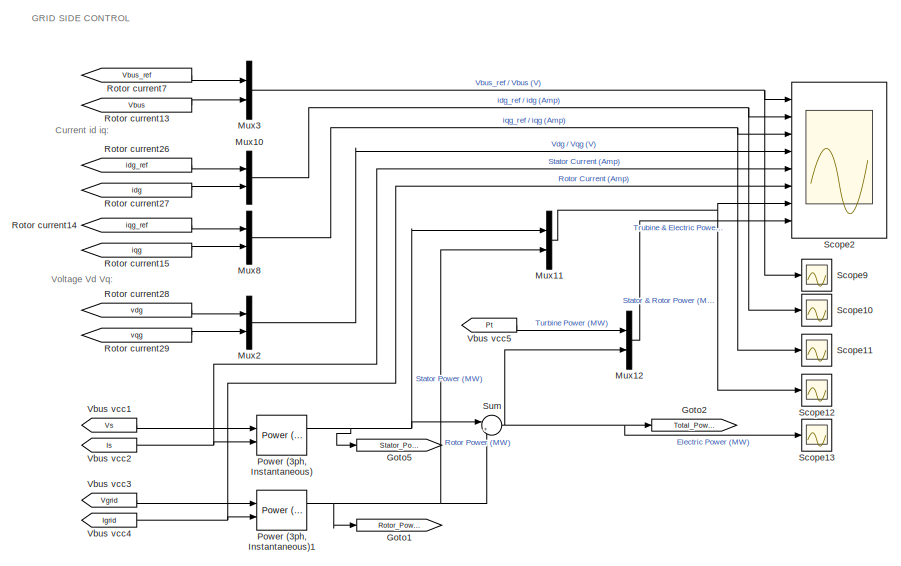
[diagram: DFIG 2.0 MW 690 V/Monitor DFIG - part 1/2, right side, full height]
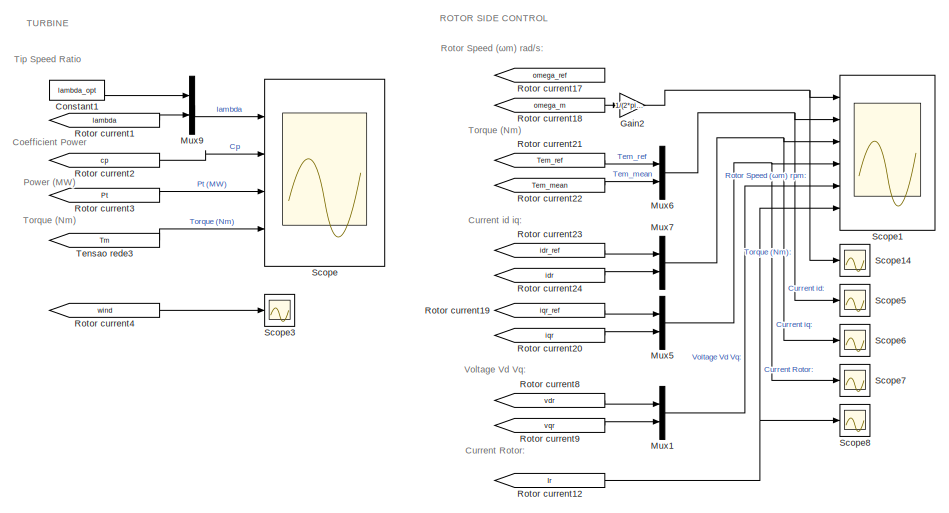
[diagram: DFIG 2.0 MW 690 V/Monitor DFIG - part 2/2, left side, full height]
BLOCK [SubSystem] DFIG 2.0 MW 690 V/Monitor DFIG
  Ports = []
  RequestExecContextInheritance = off
  Variant = off
BLOCK [Constant] DFIG 2.0 MW 690 V/Monitor DFIG/Constant1
  Value = lambda_opt
BLOCK [Gain] DFIG 2.0 MW 690 V/Monitor DFIG/Gain2
  Gain = 1/(2*pi/60)
  OutDataTypeStr = Inherit: Inherit via internal rule
  ParamDataTypeStr = Inherit: Inherit via internal rule
  SaturateOnIntegerOverflow = off
BLOCK [Goto] DFIG 2.0 MW 690 V/Monitor DFIG/Goto1
  GotoTag = Rotor_Power
  TagVisibility = global
BLOCK [Goto] DFIG 2.0 MW 690 V/Monitor DFIG/Goto2
  GotoTag = Total_Power
  TagVisibility = global
BLOCK [Goto] DFIG 2.0 MW 690 V/Monitor DFIG/Goto5
  GotoTag = Stator_Power
  TagVisibility = global
BLOCK [Mux] DFIG 2.0 MW 690 V/Monitor DFIG/Mux1
  DisplayOption = bar
  Inputs = 2
  Ports = [2, 1]
BLOCK [Mux] DFIG 2.0 MW 690 V/Monitor DFIG/Mux10
  DisplayOption = bar
  Inputs = 2
  Ports = [2, 1]
BLOCK [Mux] DFIG 2.0 MW 690 V/Monitor DFIG/Mux11
  DisplayOption = bar
  Inputs = 2
  Ports = [2, 1]
BLOCK [Mux] DFIG 2.0 MW 690 V/Monitor DFIG/Mux12
  DisplayOption = bar
  Inputs = 2
  Ports = [2, 1]
BLOCK [Mux] DFIG 2.0 MW 690 V/Monitor DFIG/Mux2
  DisplayOption = bar
  Inputs = 2
  Ports = [2, 1]
BLOCK [Mux] DFIG 2.0 MW 690 V/Monitor DFIG/Mux3
  DisplayOption = bar
  Inputs = 2
  Ports = [2, 1]
BLOCK [Mux] DFIG 2.0 MW 690 V/Monitor DFIG/Mux5
  DisplayOption = bar
  Inputs = 2
  Ports = [2, 1]
BLOCK [Mux] DFIG 2.0 MW 690 V/Monitor DFIG/Mux6
  DisplayOption = bar
  Inputs = 2
  Ports = [2, 1]
BLOCK [Mux] DFIG 2.0 MW 690 V/Monitor DFIG/Mux7
  DisplayOption = bar
  Inputs = 2
  Ports = [2, 1]
BLOCK [Mux] DFIG 2.0 MW 690 V/Monitor DFIG/Mux8
  DisplayOption = bar
  Inputs = 2
  Ports = [2, 1]
BLOCK [Mux] DFIG 2.0 MW 690 V/Monitor DFIG/Mux9
  DisplayOption = bar
  Inputs = 2
  Ports = [2, 1]
BLOCK [Reference] DFIG 2.0 MW 690 V/Monitor DFIG/Power (3ph, Instantaneous)  REF=powerlib_meascontrol/Measurements/Power
(3ph, Instantaneous)
  Ports = [2, 2]
  SourceBlock = powerlib_meascontrol/Measurements/Power\n(3ph, Instantaneous)
  SourceProductBaseCode = PS
  SourceProductName = Simscape Power Systems
  SourceType = Power (3ph, Instantaneous)
BLOCK [Reference] DFIG 2.0 MW 690 V/Monitor DFIG/Power (3ph, Instantaneous)1  REF=powerlib_meascontrol/Measurements/Power
(3ph, Instantaneous)
  Ports = [2, 2]
  SourceBlock = powerlib_meascontrol/Measurements/Power\n(3ph, Instantaneous)
  SourceProductBaseCode = PS
  SourceProductName = Simscape Power Systems
  SourceType = Power (3ph, Instantaneous)
BLOCK [From] DFIG 2.0 MW 690 V/Monitor DFIG/Rotor current1
  GotoTag = lambda
  TagVisibility = global
BLOCK [From] DFIG 2.0 MW 690 V/Monitor DFIG/Rotor current12
  GotoTag = Ir
  TagVisibility = global
BLOCK [From] DFIG 2.0 MW 690 V/Monitor DFIG/Rotor current13
  GotoTag = Vbus
  TagVisibility = global
BLOCK [From] DFIG 2.0 MW 690 V/Monitor DFIG/Rotor current14
  GotoTag = iqg_ref
  TagVisibility = global
BLOCK [From] DFIG 2.0 MW 690 V/Monitor DFIG/Rotor current15
  GotoTag = iqg
  TagVisibility = global
BLOCK [From] DFIG 2.0 MW 690 V/Monitor DFIG/Rotor current17
  GotoTag = omega_ref
BLOCK [From] DFIG 2.0 MW 690 V/Monitor DFIG/Rotor current18
  GotoTag = omega_m
  TagVisibility = global
BLOCK [From] DFIG 2.0 MW 690 V/Monitor DFIG/Rotor current19
  GotoTag = iqr_ref
  TagVisibility = global
BLOCK [From] DFIG 2.0 MW 690 V/Monitor DFIG/Rotor current2
  GotoTag = cp
  TagVisibility = global
BLOCK [From] DFIG 2.0 MW 690 V/Monitor DFIG/Rotor current20
  GotoTag = iqr
  TagVisibility = global
BLOCK [From] DFIG 2.0 MW 690 V/Monitor DFIG/Rotor current21
  GotoTag = Tem_ref
  TagVisibility = global
BLOCK [From] DFIG 2.0 MW 690 V/Monitor DFIG/Rotor current22
  GotoTag = Tem_mean
  TagVisibility = global
BLOCK [From] DFIG 2.0 MW 690 V/Monitor DFIG/Rotor current23
  GotoTag = idr_ref
  TagVisibility = global
BLOCK [From] DFIG 2.0 MW 690 V/Monitor DFIG/Rotor current24
  GotoTag = idr
  TagVisibility = global
BLOCK [From] DFIG 2.0 MW 690 V/Monitor DFIG/Rotor current26
  GotoTag = idg_ref
  TagVisibility = global
BLOCK [From] DFIG 2.0 MW 690 V/Monitor DFIG/Rotor current27
  GotoTag = idg
  TagVisibility = global
BLOCK [From] DFIG 2.0 MW 690 V/Monitor DFIG/Rotor current28
  GotoTag = vdg
  TagVisibility = global
BLOCK [From] DFIG 2.0 MW 690 V/Monitor DFIG/Rotor current29
  GotoTag = vqg
  TagVisibility = global
BLOCK [From] DFIG 2.0 MW 690 V/Monitor DFIG/Rotor current3
  GotoTag = Pt
  TagVisibility = global
BLOCK [From] DFIG 2.0 MW 690 V/Monitor DFIG/Rotor current4
  GotoTag = wind
  TagVisibility = global
BLOCK [From] DFIG 2.0 MW 690 V/Monitor DFIG/Rotor current7
  GotoTag = Vbus_ref
  TagVisibility = global
BLOCK [From] DFIG 2.0 MW 690 V/Monitor DFIG/Rotor current8
  GotoTag = vdr
  TagVisibility = global
BLOCK [From] DFIG 2.0 MW 690 V/Monitor DFIG/Rotor current9
  GotoTag = vqr
  TagVisibility = global
BLOCK [Scope] DFIG 2.0 MW 690 V/Monitor DFIG/Scope
  NumInputPorts = 4
  Ports = [4]
  ScopeSpecificationString = Simulink.scopes.TimeScopeBlockCfg('CurrentConfiguration', extmgr.ConfigurationSet(extmgr.Configuration('Core','General UI',true,'FigureColor',[0.156862745098039 0.156862745098039 0.156862745098039]),extmgr.Configuration('Core','Source UI',true),extmgr.Configuration('Sources','WiredSimulink',true,'DataLoggingVariableName','ScopeData1','DataLoggingSaveFormat','StructureWithTime','DataLoggingDecimati...<+6440ch>
BLOCK [Scope] DFIG 2.0 MW 690 V/Monitor DFIG/Scope1
  NumInputPorts = 6
  Ports = [6]
  ScopeSpecificationString = Simulink.scopes.TimeScopeBlockCfg('CurrentConfiguration', extmgr.ConfigurationSet(extmgr.Configuration('Core','General UI',true,'FigureColor',[0.156862745098039 0.156862745098039 0.156862745098039]),extmgr.Configuration('Core','Source UI',true),extmgr.Configuration('Sources','WiredSimulink',true,'DataLoggingVariableName','ScopeData2','DataLoggingSaveFormat','StructureWithTime','DataLoggingDecimati...<+8949ch>
BLOCK [Scope] DFIG 2.0 MW 690 V/Monitor DFIG/Scope10
  NumInputPorts = 1
  Ports = [1]
  ScopeSpecificationString = Simulink.scopes.TimeScopeBlockCfg('CurrentConfiguration', extmgr.ConfigurationSet(extmgr.Configuration('Core','General UI',true,'FigureColor',[1 1 1]),extmgr.Configuration('Core','Source UI',true),extmgr.Configuration('Sources','WiredSimulink',true,'DataLoggingVariableName','Current_id_grid_plot','DataLogging',true,'DataLoggingSaveFormat','Array'),extmgr.Configuration('Visuals','Time Domain',true,...<+2412ch>
BLOCK [Scope] DFIG 2.0 MW 690 V/Monitor DFIG/Scope11
  NumInputPorts = 1
  Ports = [1]
  ScopeSpecificationString = Simulink.scopes.TimeScopeBlockCfg('CurrentConfiguration', extmgr.ConfigurationSet(extmgr.Configuration('Core','General UI',true,'FigureColor',[1 1 1]),extmgr.Configuration('Core','Source UI',true),extmgr.Configuration('Sources','WiredSimulink',true,'DataLoggingVariableName','Current_iq_grid_plot','DataLogging',true,'DataLoggingSaveFormat','Array'),extmgr.Configuration('Visuals','Time Domain',true,...<+2416ch>
BLOCK [Scope] DFIG 2.0 MW 690 V/Monitor DFIG/Scope12
  NumInputPorts = 1
  Ports = [1]
  ScopeSpecificationString = Simulink.scopes.TimeScopeBlockCfg('CurrentConfiguration', extmgr.ConfigurationSet(extmgr.Configuration('Core','General UI',true,'FigureColor',[1 1 1]),extmgr.Configuration('Core','Source UI',true),extmgr.Configuration('Sources','WiredSimulink',true,'DataLoggingVariableName','Stator_rotor_total_power_plot','DataLogging',true,'DataLoggingSaveFormat','Array'),extmgr.Configuration('Visuals','Time Doma...<+2461ch>
BLOCK [Scope] DFIG 2.0 MW 690 V/Monitor DFIG/Scope13
  NumInputPorts = 1
  Ports = [1]
  ScopeSpecificationString = Simulink.scopes.TimeScopeBlockCfg('CurrentConfiguration', extmgr.ConfigurationSet(extmgr.Configuration('Core','General UI',true,'FigureColor',[1 1 1]),extmgr.Configuration('Core','Source UI',true),extmgr.Configuration('Sources','WiredSimulink',true,'DataLoggingVariableName','Total_power_plot','DataLogging',true,'DataLoggingSaveFormat','Array'),extmgr.Configuration('Visuals','Time Domain',true,'Ser...<+2416ch>
BLOCK [Scope] DFIG 2.0 MW 690 V/Monitor DFIG/Scope14
  NumInputPorts = 1
  Ports = [1]
  ScopeSpecificationString = Simulink.scopes.TimeScopeBlockCfg('CurrentConfiguration', extmgr.ConfigurationSet(extmgr.Configuration('Core','General UI',true),extmgr.Configuration('Core','Source UI',true),extmgr.Configuration('Sources','WiredSimulink',true,'DataLoggingVariableName','Rotor_speed_plot','DataLogging',true,'DataLoggingDecimation','1','DataLoggingSaveFormat','Array'),extmgr.Configuration('Visuals','Time Domain',tru...<+1578ch>
BLOCK [Scope] DFIG 2.0 MW 690 V/Monitor DFIG/Scope2
  NumInputPorts = 8
  Ports = [8]
  ScopeSpecificationString = Simulink.scopes.TimeScopeBlockCfg('CurrentConfiguration', extmgr.ConfigurationSet(extmgr.Configuration('Core','General UI',true,'FigureColor',[0.156862745098039 0.156862745098039 0.156862745098039]),extmgr.Configuration('Core','Source UI',true),extmgr.Configuration('Sources','WiredSimulink',true,'DataLoggingVariableName','ScopeData3','DataLoggingSaveFormat','StructureWithTime','DataLoggingDecimati...<+11697ch>
BLOCK [Scope] DFIG 2.0 MW 690 V/Monitor DFIG/Scope3
  NumInputPorts = 1
  Ports = [1]
  ScopeSpecificationString = Simulink.scopes.TimeScopeBlockCfg('CurrentConfiguration', extmgr.ConfigurationSet(extmgr.Configuration('Core','General UI',true,'FigureColor',[1 1 1]),extmgr.Configuration('Core','Source UI',true),extmgr.Configuration('Sources','WiredSimulink',true,'DataLoggingVariableName','wind_plot','DataLogging',true,'DataLoggingSaveFormat','Array'),extmgr.Configuration('Visuals','Time Domain',true,'Serialized...<+2314ch>
BLOCK [Scope] DFIG 2.0 MW 690 V/Monitor DFIG/Scope5
  NumInputPorts = 1
  Ports = [1]
  ScopeSpecificationString = Simulink.scopes.TimeScopeBlockCfg('CurrentConfiguration', extmgr.ConfigurationSet(extmgr.Configuration('Core','General UI',true,'FigureColor',[1 1 1]),extmgr.Configuration('Core','Source UI',true),extmgr.Configuration('Sources','WiredSimulink',true,'DataLoggingVariableName','torque_MPPT_plot','DataLogging',true,'DataLoggingSaveFormat','Array'),extmgr.Configuration('Visuals','Time Domain',true,'Ser...<+2406ch>
BLOCK [Scope] DFIG 2.0 MW 690 V/Monitor DFIG/Scope6
  NumInputPorts = 1
  Ports = [1]
  ScopeSpecificationString = Simulink.scopes.TimeScopeBlockCfg('CurrentConfiguration', extmgr.ConfigurationSet(extmgr.Configuration('Core','General UI',true,'FigureColor',[1 1 1]),extmgr.Configuration('Core','Source UI',true),extmgr.Configuration('Sources','WiredSimulink',true,'DataLoggingVariableName','Current_id_rotor_plot','DataLogging',true,'DataLoggingSaveFormat','Array'),extmgr.Configuration('Visuals','Time Domain',true...<+2407ch>
BLOCK [Scope] DFIG 2.0 MW 690 V/Monitor DFIG/Scope7
  NumInputPorts = 1
  Ports = [1]
  ScopeSpecificationString = Simulink.scopes.TimeScopeBlockCfg('CurrentConfiguration', extmgr.ConfigurationSet(extmgr.Configuration('Core','General UI',true,'FigureColor',[1 1 1]),extmgr.Configuration('Core','Source UI',true),extmgr.Configuration('Sources','WiredSimulink',true,'DataLoggingVariableName','Current_iq_rotor_plot','DataLogging',true,'DataLoggingSaveFormat','Array'),extmgr.Configuration('Visuals','Time Domain',true...<+2407ch>
BLOCK [Scope] DFIG 2.0 MW 690 V/Monitor DFIG/Scope8
  NumInputPorts = 1
  Ports = [1]
  ScopeSpecificationString = Simulink.scopes.TimeScopeBlockCfg('CurrentConfiguration', extmgr.ConfigurationSet(extmgr.Configuration('Core','General UI',true,'FigureColor',[1 1 1]),extmgr.Configuration('Core','Source UI',true),extmgr.Configuration('Sources','WiredSimulink',true,'DataLoggingVariableName','Current_rotor_plot','DataLogging',true,'DataLoggingSaveFormat','Array'),extmgr.Configuration('Visuals','Time Domain',true,'S...<+2423ch>
BLOCK [Scope] DFIG 2.0 MW 690 V/Monitor DFIG/Scope9
  NumInputPorts = 1
  Ports = [1]
  ScopeSpecificationString = Simulink.scopes.TimeScopeBlockCfg('CurrentConfiguration', extmgr.ConfigurationSet(extmgr.Configuration('Core','General UI',true,'FigureColor',[1 1 1]),extmgr.Configuration('Core','Source UI',true),extmgr.Configuration('Sources','WiredSimulink',true,'DataLoggingVariableName','Vbus_plot','DataLogging',true,'DataLoggingSaveFormat','Array'),extmgr.Configuration('Visuals','Time Domain',true,'Serialized...<+2401ch>
BLOCK [Sum] DFIG 2.0 MW 690 V/Monitor DFIG/Sum
  IconShape = round
  InputSameDT = off
  Inputs = |++
  OutDataTypeStr = Inherit: Inherit via internal rule
  Ports = [2, 1]
  SaturateOnIntegerOverflow = off
BLOCK [From] DFIG 2.0 MW 690 V/Monitor DFIG/Tensao rede3
  GotoTag = Tm
  TagVisibility = global
BLOCK [From] DFIG 2.0 MW 690 V/Monitor DFIG/Vbus vcc1
  GotoTag = Vs
  TagVisibility = global
BLOCK [From] DFIG 2.0 MW 690 V/Monitor DFIG/Vbus vcc2
  GotoTag = Is
  TagVisibility = global
BLOCK [From] DFIG 2.0 MW 690 V/Monitor DFIG/Vbus vcc3
  GotoTag = Vgrid
  TagVisibility = global
BLOCK [From] DFIG 2.0 MW 690 V/Monitor DFIG/Vbus vcc4
  GotoTag = Igrid
  TagVisibility = global
BLOCK [From] DFIG 2.0 MW 690 V/Monitor DFIG/Vbus vcc5
  GotoTag = Pt
  TagVisibility = global
BLOCK [From] DFIG 2.0 MW 690 V/Omega_m (Ωm)
  GotoTag = omega_m
  TagVisibility = global
BLOCK [From] DFIG 2.0 MW 690 V/Omega_m (Ωm)1
  GotoTag = omega_m
  TagVisibility = global
BLOCK [Constant] DFIG 2.0 MW 690 V/Reativa ref
  Value = 0
BLOCK [Reference] DFIG 2.0 MW 690 V/Repeating Sequence5  REF=simulink/Sources/Repeating
Sequence
  Ports = [0, 1]
  SourceBlock = simulink/Sources/Repeating\nSequence
  SourceProductBaseCode = SL
  SourceProductName = Simulink
  SourceType = Repeating table
BLOCK [From] DFIG 2.0 MW 690 V/Rotor current18
  GotoTag = omega_m
  TagVisibility = global
BLOCK [Scope] DFIG 2.0 MW 690 V/Scope
  NumInputPorts = 1
  Ports = [1]
  ScopeSpecificationString = Simulink.scopes.TimeScopeBlockCfg('CurrentConfiguration', extmgr.ConfigurationSet(extmgr.Configuration('Core','General UI',true),extmgr.Configuration('Core','Source UI',true),extmgr.Configuration('Sources','WiredSimulink',true,'DataLoggingVariableName','ScopeData1'),extmgr.Configuration('Visuals','Time Domain',true,'SerializedDisplays',{struct('MinYLimReal','9.8125','MaxYLimReal','11.6875','YLabel...<+1466ch>
BLOCK [Reference] DFIG 2.0 MW 690 V/Series RLC Branch  REF=powerlib/Elements/Series RLC Branch
  Ports = [0, 0, 0, 0, 0, 1, 1]
  SourceBlock = powerlib/Elements/Series RLC Branch
  SourceProductBaseCode = PS
  SourceProductName = Simscape Power Systems
  SourceType = Series RLC Branch
BLOCK [Reference] DFIG 2.0 MW 690 V/Series RLC Branch1  REF=powerlib/Elements/Series RLC Branch
  Ports = [0, 0, 0, 0, 0, 1, 1]
  SourceBlock = powerlib/Elements/Series RLC Branch
  SourceProductBaseCode = PS
  SourceProductName = Simscape Power Systems
  SourceType = Series RLC Branch
BLOCK [Reference] DFIG 2.0 MW 690 V/Series RLC Branch2  REF=powerlib/Elements/Series RLC Branch
  Ports = [0, 0, 0, 0, 0, 1, 1]
  SourceBlock = powerlib/Elements/Series RLC Branch
  SourceProductBaseCode = PS
  SourceProductName = Simscape Power Systems
  SourceType = Series RLC Branch
BLOCK [Reference] DFIG 2.0 MW 690 V/Series RLC Branch3  REF=powerlib/Elements/Series RLC Branch
  Ports = [0, 0, 0, 0, 0, 1, 1]
  SourceBlock = powerlib/Elements/Series RLC Branch
  SourceProductBaseCode = PS
  SourceProductName = Simscape Power Systems
  SourceType = Series RLC Branch
BLOCK [SubSystem] DFIG 2.0 MW 690 V/Subsystem
  Ports = [1]
  RequestExecContextInheritance = off
  Variant = off
BLOCK [BusSelector] DFIG 2.0 MW 690 V/Subsystem/Bus Selector
  OutputAsBus = off
  OutputSignals = Mechanical.Rotor angle thetam (rad),Mechanical.Rotor speed (wm),Mechanical.Electromagnetic torque Te (N*m)
  Ports = [1, 3]
BLOCK [Goto] DFIG 2.0 MW 690 V/Subsystem/Goto
  GotoTag = tita_m
  TagVisibility = global
BLOCK [Goto] DFIG 2.0 MW 690 V/Subsystem/Goto1
  GotoTag = omega_m
  TagVisibility = global
BLOCK [Goto] DFIG 2.0 MW 690 V/Subsystem/Goto2
  GotoTag = Tem_mean
  TagVisibility = global
BLOCK [Inport] DFIG 2.0 MW 690 V/Subsystem/In1
  IconDisplay = Port number
BLOCK [From] DFIG 2.0 MW 690 V/Tensao rede
  GotoTag = Vs
  TagVisibility = global
BLOCK [From] DFIG 2.0 MW 690 V/Tensao rede1
  GotoTag = RSC
  TagVisibility = global
BLOCK [From] DFIG 2.0 MW 690 V/Tensao rede2
  GotoTag = GSC
  TagVisibility = global
BLOCK [From] DFIG 2.0 MW 690 V/Tensao rede3
  GotoTag = Tm
  TagVisibility = global
BLOCK [Reference] DFIG 2.0 MW 690 V/Three-Phase Programmable Voltage Source  REF=powerlib/Electrical
Sources/Three-Phase
Programmable
Voltage Source
  Ports = [0, 0, 0, 0, 0, 1, 3]
  SourceBlock = powerlib/Electrical\nSources/Three-Phase\nProgrammable\nVoltage Source
  SourceProductBaseCode = PS
  SourceProductName = Simscape Power Systems
  SourceType = Three-Phase Programmable Voltage Source
BLOCK [Reference] DFIG 2.0 MW 690 V/Three-Phase Transformer (Two Windings)  REF=powerlib/Elements/Three-Phase
Transformer
(Two Windings)
  Ports = [0, 0, 0, 0, 0, 3, 3]
  SourceBlock = powerlib/Elements/Three-Phase\nTransformer\n(Two Windings)
  SourceProductBaseCode = PS
  SourceProductName = Simscape Power Systems
  SourceType = Three-Phase Transformer (Two Windings)
BLOCK [Reference] DFIG 2.0 MW 690 V/Three-Phase V-I Measurement  REF=powerlib/Measurements/Three-Phase
V-I Measurement
  Ports = [0, 0, 0, 0, 0, 3, 3]
  SourceBlock = powerlib/Measurements/Three-Phase\nV-I Measurement
  SourceProductBaseCode = PS
  SourceProductName = Simscape Power Systems
  SourceType = Three-Phase VI Measurement
BLOCK [Reference] DFIG 2.0 MW 690 V/Three-Phase V-I Measurement1  REF=powerlib/Measurements/Three-Phase
V-I Measurement
  Ports = [0, 0, 0, 0, 0, 3, 3]
  SourceBlock = powerlib/Measurements/Three-Phase\nV-I Measurement
  SourceProductBaseCode = PS
  SourceProductName = Simscape Power Systems
  SourceType = Three-Phase VI Measurement
BLOCK [Reference] DFIG 2.0 MW 690 V/Three-Phase V-I Measurement3  REF=powerlib/Measurements/Three-Phase
V-I Measurement
  Ports = [0, 0, 0, 0, 0, 3, 3]
  SourceBlock = powerlib/Measurements/Three-Phase\nV-I Measurement
  SourceProductBaseCode = PS
  SourceProductName = Simscape Power Systems
  SourceType = Three-Phase VI Measurement
BLOCK [From] DFIG 2.0 MW 690 V/Tita_m (θm)
  GotoTag = tita_m
  TagVisibility = global
BLOCK [Reference] DFIG 2.0 MW 690 V/Universal Bridge  REF=powerlib/Power
Electronics/Universal Bridge
  Ports = [1, 0, 0, 0, 0, 3, 2]
  SourceBlock = powerlib/Power\nElectronics/Universal Bridge
  SourceProductBaseCode = PS
  SourceProductName = Simscape Power Systems
  SourceType = Universal Bridge
BLOCK [Reference] DFIG 2.0 MW 690 V/Universal Bridge1  REF=powerlib/Power
Electronics/Universal Bridge
  Ports = [1, 0, 0, 0, 0, 3, 2]
  SourceBlock = powerlib/Power\nElectronics/Universal Bridge
  SourceProductBaseCode = PS
  SourceProductName = Simscape Power Systems
  SourceType = Universal Bridge
BLOCK [From] DFIG 2.0 MW 690 V/Vabc
  GotoTag = Vs
  TagVisibility = global
BLOCK [From] DFIG 2.0 MW 690 V/Vbus vcc
  GotoTag = Vbus
  TagVisibility = global
BLOCK [From] DFIG 2.0 MW 690 V/Vbus vcc1
  GotoTag = Stator_Power
  TagVisibility = global
BLOCK [From] DFIG 2.0 MW 690 V/Vbus vcc2
  GotoTag = Rotor_Power
  TagVisibility = global
BLOCK [From] DFIG 2.0 MW 690 V/Vbus vcc3
  GotoTag = Total_Power
  TagVisibility = global
BLOCK [Reference] DFIG 2.0 MW 690 V/Voltage Measurement  REF=powerlib/Measurements/Voltage Measurement
  Ports = [0, 1, 0, 0, 0, 2]
  SourceBlock = powerlib/Measurements/Voltage Measurement
  SourceProductBaseCode = PS
  SourceProductName = Simscape Power Systems
  SourceType = Voltage Measurement
  UserDataPersistent = on
BLOCK [SubSystem] DFIG 2.0 MW 690 V/Wind Trubine Model
  Ports = [2, 2]
  RequestExecContextInheritance = off
  Variant = off
BLOCK [Saturate] DFIG 2.0 MW 690 V/Wind Trubine Model/Avoid div. by zero
  InputPortMap = u0
  LowerLimit = eps
  Ports = [1, 1]
  UpperLimit = inf
BLOCK [Saturate] DFIG 2.0 MW 690 V/Wind Trubine Model/Avoid div. by zero 
  InputPortMap = u0
  LowerLimit = eps
  Ports = [1, 1]
  UpperLimit = inf
BLOCK [Fcn] DFIG 2.0 MW 690 V/Wind Trubine Model/Cp
  Expr = 0.73*(151/u[1]-0.58*u[2]-0.002*u[2]^2.14-13.2)*(exp(-18.4/u[1]))
BLOCK [Display] DFIG 2.0 MW 690 V/Wind Trubine Model/Display
  Decimation = 1
  Ports = [1]
BLOCK [Display] DFIG 2.0 MW 690 V/Wind Trubine Model/Display1
  Decimation = 1
  Ports = [1]
BLOCK [Display] DFIG 2.0 MW 690 V/Wind Trubine Model/Display2
  Decimation = 1
  Ports = [1]
BLOCK [Display] DFIG 2.0 MW 690 V/Wind Trubine Model/Display3
  Decimation = 1
  Ports = [1]
BLOCK [Display] DFIG 2.0 MW 690 V/Wind Trubine Model/Display7
  Decimation = 1
  Ports = [1]
BLOCK [Gain] DFIG 2.0 MW 690 V/Wind Trubine Model/Gearbox Ratio
  Gain = 1/N
  OutDataTypeStr = Inherit: Inherit via internal rule
  ParamDataTypeStr = Inherit: Inherit via internal rule
  SaturateOnIntegerOverflow = off
BLOCK [Gain] DFIG 2.0 MW 690 V/Wind Trubine Model/Gearbox Ratio Generator Torque (-)
  Gain = -1/N
  OutDataTypeStr = Inherit: Inherit via internal rule
  ParamDataTypeStr = Inherit: Inherit via internal rule
  SaturateOnIntegerOverflow = off
BLOCK [Goto] DFIG 2.0 MW 690 V/Wind Trubine Model/Goto1
  GotoTag = cp
  TagVisibility = global
BLOCK [Goto] DFIG 2.0 MW 690 V/Wind Trubine Model/Goto2
  GotoTag = Pt
  TagVisibility = global
BLOCK [Goto] DFIG 2.0 MW 690 V/Wind Trubine Model/Goto3
  GotoTag = Tt
  TagVisibility = global
BLOCK [Goto] DFIG 2.0 MW 690 V/Wind Trubine Model/Goto4
  GotoTag = lambda
  TagVisibility = global
BLOCK [Fcn] DFIG 2.0 MW 690 V/Wind Trubine Model/Lambda
  Expr = Radio*u[2]/u[1]
BLOCK [Fcn] DFIG 2.0 MW 690 V/Wind Trubine Model/Lambdai
  Expr = (1/((1/(u[1]-0.02*u[2])+(0.003/(u[2]^3+1)))))
BLOCK [Mux] DFIG 2.0 MW 690 V/Wind Trubine Model/Mux
  DisplayOption = bar
  Inputs = 2
  Ports = [2, 1]
BLOCK [Mux] DFIG 2.0 MW 690 V/Wind Trubine Model/Mux2
  DisplayOption = bar
  Inputs = 2
  Ports = [2, 1]
BLOCK [Mux] DFIG 2.0 MW 690 V/Wind Trubine Model/Mux3
  DisplayOption = bar
  Inputs = 2
  Ports = [2, 1]
BLOCK [Mux] DFIG 2.0 MW 690 V/Wind Trubine Model/Mux4
  DisplayOption = bar
  Inputs = 2
  Ports = [2, 1]
BLOCK [From] DFIG 2.0 MW 690 V/Wind Trubine Model/Omega_m (Ωm)2
  GotoTag = omega_m
  TagVisibility = global
BLOCK [Inport] DFIG 2.0 MW 690 V/Wind Trubine Model/Pitch angle (°)
  IconDisplay = Port number
BLOCK [Outport] DFIG 2.0 MW 690 V/Wind Trubine Model/Pot_mechanical
  IconDisplay = Port number
  Port = 2
BLOCK [Product] DFIG 2.0 MW 690 V/Wind Trubine Model/Product2
  Inputs = */
  Ports = [2, 1]
  RndMeth = Floor
BLOCK [Fcn] DFIG 2.0 MW 690 V/Wind Trubine Model/Pt
  Expr = (0.5*ro*pi*(Radio)^2*(u[1])^3*u[2])
BLOCK [Outport] DFIG 2.0 MW 690 V/Wind Trubine Model/Tm
  IconDisplay = Port number
BLOCK [Inport] DFIG 2.0 MW 690 V/Wind Trubine Model/Wind speed (m//s)
  IconDisplay = Port number
  Port = 2
BLOCK [Constant] DFIG 2.0 MW 690 V/Wind speed (m//s) 1
  Value = 11.2
BLOCK [ZeroOrderHold] DFIG 2.0 MW 690 V/Zero-Order Hold
  SampleTime = 1/fsw
BLOCK [ZeroOrderHold] DFIG 2.0 MW 690 V/Zero-Order Hold1
  SampleTime = 1/fsw
BLOCK [ZeroOrderHold] DFIG 2.0 MW 690 V/Zero-Order Hold2
  SampleTime = 1/fsw
BLOCK [ZeroOrderHold] DFIG 2.0 MW 690 V/Zero-Order Hold3
  SampleTime = 1/fsw
BLOCK [ZeroOrderHold] DFIG 2.0 MW 690 V/Zero-Order Hold4
  SampleTime = 1/fsw
BLOCK [ZeroOrderHold] DFIG 2.0 MW 690 V/Zero-Order Hold5
  SampleTime = 1/fsw
BLOCK [ZeroOrderHold] DFIG 2.0 MW 690 V/Zero-Order Hold6
  SampleTime = 1/fsw
BLOCK [ZeroOrderHold] DFIG 2.0 MW 690 V/Zero-Order Hold7
  SampleTime = 1/fsw
BLOCK [ZeroOrderHold] DFIG 2.0 MW 690 V/Zero-Order Hold8
  SampleTime = 1/fsw
BLOCK [Constant] DFIG 2.0 MW 690 V/beta1
  Value = beta
BLOCK [From] DFIG 2.0 MW 690 V/iabc
  GotoTag = Ir
  TagVisibility = global
BLOCK [From] DFIG 2.0 MW 690 V/iabc1
  GotoTag = Tem_ref
  TagVisibility = global
BLOCK [Reference] powergui  REF=powerlib/powergui
  Ports = []
  Priority = 1
  SourceBlock = powerlib/powergui
  SourceProductBaseCode = PS
  SourceProductName = Simscape Power Systems
  SourceType = PSB option menu block
ANNOTATION DFIG 2.0 MW 690 V: 690V L-L
ANNOTATION DFIG 2.0 MW 690 V: Rotor: Tita_m (θm) Omega_m (Ωm) Tem
ANNOTATION DFIG 2.0 MW 690 V/Control: Normalization
ANNOTATION DFIG 2.0 MW 690 V/Control: Qs control loop
ANNOTATION DFIG 2.0 MW 690 V/Control: Torque control loop
ANNOTATION DFIG 2.0 MW 690 V/Control: idr_ref
ANNOTATION DFIG 2.0 MW 690 V/Control: iqr_ref
ANNOTATION DFIG 2.0 MW 690 V/Control/ Angle Rotor: Vector control of the DFIM is performed in a synchronously rotating dq frame, in which the d-axis is aligned, in this case, with the stator flux space vector
ANNOTATION DFIG 2.0 MW 690 V/Control/ Angle Rotor: The relation between the mechanical angle of the shaft and the electrical angle depends on the pole pairs of the machine: θm (electrical) = Pole * θm (mechanical)
ANNOTATION DFIG 2.0 MW 690 V/Control/ Angle Rotor: The stator reference frame (α - β) is a stationary reference frame.
ANNOTATION DFIG 2.0 MW 690 V/Control/ Angle Rotor: Theta_m (θm) Electric
ANNOTATION DFIG 2.0 MW 690 V/Control/ Angle Rotor: Vαs/βs
ANNOTATION DFIG 2.0 MW 690 V/Control/ Angle Rotor: θs=θr+θm θr=θs-θm
ANNOTATION DFIG 2.0 MW 690 V/Control/ Angle Rotor: theta_V θv
ANNOTATION DFIG 2.0 MW 690 V/Control/ Angle Rotor: theta_s (θs)
ANNOTATION DFIG 2.0 MW 690 V/Control/ Angle Rotor: θs=θv-90°
ANNOTATION DFIG 2.0 MW 690 V/Control/Cancelation of cc: Ωm rd/s Mechanic
ANNOTATION DFIG 2.0 MW 690 V/Control/Cancelation of cc: Pole Pairs
ANNOTATION DFIG 2.0 MW 690 V/Control/Cancelation of cc: Stator Flux
ANNOTATION DFIG 2.0 MW 690 V/Control/Cancelation of cc: ωm (rd/s) Electrical
ANNOTATION DFIG 2.0 MW 690 V/Control/Cancelation of cc: ωr = ωs - ωm
ANNOTATION DFIG 2.0 MW 690 V/Control/Cancelation of cc: ωs (Hz)
ANNOTATION DFIG 2.0 MW 690 V/Control/Cancelation of cc: ωs (rd/s)
ANNOTATION DFIG 2.0 MW 690 V/Control/abc - α//β : iαr
ANNOTATION DFIG 2.0 MW 690 V/Control/abc - α//β : iβr
ANNOTATION DFIG 2.0 MW 690 V/Control1: idg_ref
ANNOTATION DFIG 2.0 MW 690 V/Control1/ Angle Rotor: Vg α/β
ANNOTATION DFIG 2.0 MW 690 V/Control1/PI: reference
ANNOTATION DFIG 2.0 MW 690 V/Control1/PI: signal
ANNOTATION DFIG 2.0 MW 690 V/Control1/abc - α//β  : iαg
ANNOTATION DFIG 2.0 MW 690 V/Control1/abc - α//β  : iβg
ANNOTATION DFIG 2.0 MW 690 V/MPPT: Zone 2: MPPT with Vw 5 - 11
ANNOTATION DFIG 2.0 MW 690 V/Monitor DFIG: GRID SIDE CONTROL
ANNOTATION DFIG 2.0 MW 690 V/Monitor DFIG: ROTOR SIDE CONTROL
ANNOTATION DFIG 2.0 MW 690 V/Monitor DFIG: TURBINE
ANNOTATION DFIG 2.0 MW 690 V/Monitor DFIG: Coefficient Power
ANNOTATION DFIG 2.0 MW 690 V/Monitor DFIG: Rotor Speed (ωm) rad/s:
ANNOTATION DFIG 2.0 MW 690 V/Monitor DFIG: Current Rotor:
ANNOTATION DFIG 2.0 MW 690 V/Monitor DFIG: Current id iq:
ANNOTATION DFIG 2.0 MW 690 V/Monitor DFIG: Power (MW)
ANNOTATION DFIG 2.0 MW 690 V/Monitor DFIG: Tip Speed Ratio
ANNOTATION DFIG 2.0 MW 690 V/Monitor DFIG: Torque (Nm)
ANNOTATION DFIG 2.0 MW 690 V/Monitor DFIG: Voltage Vd Vq:
LINE DFIG 2.0 MW 690 V/Asynchronous Machine SI Units:1 -> DFIG 2.0 MW 690 V/Subsystem:1
LINE DFIG 2.0 MW 690 V/Constant2:1 -> DFIG 2.0 MW 690 V/Control:2
LINE DFIG 2.0 MW 690 V/Constant3:1 -> DFIG 2.0 MW 690 V/Zero-Order Hold7:1
LINE DFIG 2.0 MW 690 V/Control/ Angle Rotor/Clarke: abc - αβ /Fcn1:1 -> DFIG 2.0 MW 690 V/Control/ Angle Rotor/Clarke: abc - αβ /Mux:2
LINE DFIG 2.0 MW 690 V/Control/ Angle Rotor/Clarke: abc - αβ /Fcn:1 -> DFIG 2.0 MW 690 V/Control/ Angle Rotor/Clarke: abc - αβ /Mux:1
LINE DFIG 2.0 MW 690 V/Control/ Angle Rotor/Clarke: abc - αβ /Mux:1 -> DFIG 2.0 MW 690 V/Control/ Angle Rotor/Clarke: abc - αβ /Vαs//βs :1
NET DFIG 2.0 MW 690 V/Control/ Angle Rotor/Clarke: abc - αβ /Vabc:1 -> DFIG 2.0 MW 690 V/Control/ Angle Rotor/Clarke: abc - αβ /Fcn1:1, DFIG 2.0 MW 690 V/Control/ Angle Rotor/Clarke: abc - αβ /Fcn:1
LINE DFIG 2.0 MW 690 V/Control/ Angle Rotor/Clarke: abc - αβ :1 -> DFIG 2.0 MW 690 V/Control/ Angle Rotor/Demux:1
LINE DFIG 2.0 MW 690 V/Control/ Angle Rotor/Constant:1 -> DFIG 2.0 MW 690 V/Control/ Angle Rotor/Sum:2
LINE DFIG 2.0 MW 690 V/Control/ Angle Rotor/Demux:1 -> DFIG 2.0 MW 690 V/Control/ Angle Rotor/θv=tan^(-1) (Vβ//Vα):2
LINE DFIG 2.0 MW 690 V/Control/ Angle Rotor/Demux:2 -> DFIG 2.0 MW 690 V/Control/ Angle Rotor/θv=tan^(-1) (Vβ//Vα):1
LINE DFIG 2.0 MW 690 V/Control/ Angle Rotor/Manual Switch1:1 -> DFIG 2.0 MW 690 V/Control/ Angle Rotor/Sum:1
LINE DFIG 2.0 MW 690 V/Control/ Angle Rotor/PLL (3ph)1:2 -> DFIG 2.0 MW 690 V/Control/ Angle Rotor/Manual Switch1:1
LINE DFIG 2.0 MW 690 V/Control/ Angle Rotor/Pole Pairs:1 -> DFIG 2.0 MW 690 V/Control/ Angle Rotor/Sum1:2
LINE DFIG 2.0 MW 690 V/Control/ Angle Rotor/Sum1:1 -> DFIG 2.0 MW 690 V/Control/ Angle Rotor/theta_r (θr):1
LINE DFIG 2.0 MW 690 V/Control/ Angle Rotor/Sum:1 -> DFIG 2.0 MW 690 V/Control/ Angle Rotor/Sum1:1
LINE DFIG 2.0 MW 690 V/Control/ Angle Rotor/Theta_m (θm) Mechanic:1 -> DFIG 2.0 MW 690 V/Control/ Angle Rotor/Pole Pairs:1
NET DFIG 2.0 MW 690 V/Control/ Angle Rotor/Vabcs:1 -> DFIG 2.0 MW 690 V/Control/ Angle Rotor/Clarke: abc - αβ :1, DFIG 2.0 MW 690 V/Control/ Angle Rotor/PLL (3ph)1:1
LINE DFIG 2.0 MW 690 V/Control/ Angle Rotor/θv=tan^(-1) (Vβ//Vα):1 -> DFIG 2.0 MW 690 V/Control/ Angle Rotor/Manual Switch1:2
NET DFIG 2.0 MW 690 V/Control/ Angle Rotor:1 -> DFIG 2.0 MW 690 V/Control/d//q - α//β:2, DFIG 2.0 MW 690 V/Control/α//β - d//q:2
NET DFIG 2.0 MW 690 V/Control/1//kQ:1 -> DFIG 2.0 MW 690 V/Control/Goto2:1, DFIG 2.0 MW 690 V/Control/PI Id:1
NET DFIG 2.0 MW 690 V/Control/1//kT:1 -> DFIG 2.0 MW 690 V/Control/Goto3:1, DFIG 2.0 MW 690 V/Control/PI Iq:1
NET DFIG 2.0 MW 690 V/Control/3er Harmonic Inyection/Gain:1 -> DFIG 2.0 MW 690 V/Control/3er Harmonic Inyection/Scope:1, DFIG 2.0 MW 690 V/Control/3er Harmonic Inyection/Sum1:2
LINE DFIG 2.0 MW 690 V/Control/3er Harmonic Inyection/MinMax1:1 -> DFIG 2.0 MW 690 V/Control/3er Harmonic Inyection/Sum:2
LINE DFIG 2.0 MW 690 V/Control/3er Harmonic Inyection/MinMax:1 -> DFIG 2.0 MW 690 V/Control/3er Harmonic Inyection/Sum:1
LINE DFIG 2.0 MW 690 V/Control/3er Harmonic Inyection/Sum1:1 -> DFIG 2.0 MW 690 V/Control/3er Harmonic Inyection/out:1
LINE DFIG 2.0 MW 690 V/Control/3er Harmonic Inyection/Sum:1 -> DFIG 2.0 MW 690 V/Control/3er Harmonic Inyection/Gain:1
NET DFIG 2.0 MW 690 V/Control/3er Harmonic Inyection/in:1 -> DFIG 2.0 MW 690 V/Control/3er Harmonic Inyection/MinMax1:1, DFIG 2.0 MW 690 V/Control/3er Harmonic Inyection/MinMax:1, DFIG 2.0 MW 690 V/Control/3er Harmonic Inyection/Sum1:1
LINE DFIG 2.0 MW 690 V/Control/3er Harmonic Inyection:1 -> DFIG 2.0 MW 690 V/Control/Gain:1
LINE DFIG 2.0 MW 690 V/Control/Cancelation of cc/Constant1:1 -> DFIG 2.0 MW 690 V/Control/Cancelation of cc/Mux1:6
LINE DFIG 2.0 MW 690 V/Control/Cancelation of cc/Constant:1 -> DFIG 2.0 MW 690 V/Control/Cancelation of cc/Gain1:1
NET DFIG 2.0 MW 690 V/Control/Cancelation of cc/Fcn1:1 -> DFIG 2.0 MW 690 V/Control/Cancelation of cc/Goto1:1, DFIG 2.0 MW 690 V/Control/Cancelation of cc/Mux:2
NET DFIG 2.0 MW 690 V/Control/Cancelation of cc/Fcn:1 -> DFIG 2.0 MW 690 V/Control/Cancelation of cc/Goto:1, DFIG 2.0 MW 690 V/Control/Cancelation of cc/Mux:1
LINE DFIG 2.0 MW 690 V/Control/Cancelation of cc/From1:1 -> DFIG 2.0 MW 690 V/Control/Cancelation of cc/Mux1:4
LINE DFIG 2.0 MW 690 V/Control/Cancelation of cc/From:1 -> DFIG 2.0 MW 690 V/Control/Cancelation of cc/Mux1:3
NET DFIG 2.0 MW 690 V/Control/Cancelation of cc/Gain1:1 -> DFIG 2.0 MW 690 V/Control/Cancelation of cc/Goto3:1, DFIG 2.0 MW 690 V/Control/Cancelation of cc/Sum:1
LINE DFIG 2.0 MW 690 V/Control/Cancelation of cc/Gain:1 -> DFIG 2.0 MW 690 V/Control/Cancelation of cc/Sum:2
NET DFIG 2.0 MW 690 V/Control/Cancelation of cc/Mux1:1 -> DFIG 2.0 MW 690 V/Control/Cancelation of cc/Fcn1:1, DFIG 2.0 MW 690 V/Control/Cancelation of cc/Fcn:1
LINE DFIG 2.0 MW 690 V/Control/Cancelation of cc/Mux:1 -> DFIG 2.0 MW 690 V/Control/Cancelation of cc/Vdr  Vqr:1
LINE DFIG 2.0 MW 690 V/Control/Cancelation of cc/Sum:1 -> DFIG 2.0 MW 690 V/Control/Cancelation of cc/Mux1:5
LINE DFIG 2.0 MW 690 V/Control/Cancelation of cc/Vd:1 -> DFIG 2.0 MW 690 V/Control/Cancelation of cc/Mux1:1
LINE DFIG 2.0 MW 690 V/Control/Cancelation of cc/Vq:1 -> DFIG 2.0 MW 690 V/Control/Cancelation of cc/Mux1:2
LINE DFIG 2.0 MW 690 V/Control/Cancelation of cc/omega_m (Ωm):1 -> DFIG 2.0 MW 690 V/Control/Cancelation of cc/Gain:1
LINE DFIG 2.0 MW 690 V/Control/Cancelation of cc:1 -> DFIG 2.0 MW 690 V/Control/d//q - α//β:1
NET DFIG 2.0 MW 690 V/Control/Demux:1 -> DFIG 2.0 MW 690 V/Control/Goto:1, DFIG 2.0 MW 690 V/Control/PI Id:2
NET DFIG 2.0 MW 690 V/Control/Demux:2 -> DFIG 2.0 MW 690 V/Control/Goto1:1, DFIG 2.0 MW 690 V/Control/PI Iq:2
LINE DFIG 2.0 MW 690 V/Control/Gain 1 Trasnformer:1 -> DFIG 2.0 MW 690 V/Control/abc - α//β :1
LINE DFIG 2.0 MW 690 V/Control/Gain 2 Trasnformer:1 -> DFIG 2.0 MW 690 V/Control/PWM Generator (2-Level):1
LINE DFIG 2.0 MW 690 V/Control/Gain:1 -> DFIG 2.0 MW 690 V/Control/Gain 2 Trasnformer:1
LINE DFIG 2.0 MW 690 V/Control/Omega_m (Ωm) :1 -> DFIG 2.0 MW 690 V/Control/Cancelation of cc:3
NET DFIG 2.0 MW 690 V/Control/PI Id/Discrete-Time Integrator:1 -> DFIG 2.0 MW 690 V/Control/PI Id/Sat2:1, DFIG 2.0 MW 690 V/Control/PI Id/Sum1:2
LINE DFIG 2.0 MW 690 V/Control/PI Id/Gain1:1 -> DFIG 2.0 MW 690 V/Control/PI Id/Discrete-Time Integrator:1
LINE DFIG 2.0 MW 690 V/Control/PI Id/Gain:1 -> DFIG 2.0 MW 690 V/Control/PI Id/Sum1:1
LINE DFIG 2.0 MW 690 V/Control/PI Id/Mux:1 -> DFIG 2.0 MW 690 V/Control/PI Id/Scope:1
NET DFIG 2.0 MW 690 V/Control/PI Id/Saturation:1 -> DFIG 2.0 MW 690 V/Control/PI Id/Sat:1, DFIG 2.0 MW 690 V/Control/PI Id/Vd:1
LINE DFIG 2.0 MW 690 V/Control/PI Id/Sum1:1 -> DFIG 2.0 MW 690 V/Control/PI Id/Saturation:1
NET DFIG 2.0 MW 690 V/Control/PI Id/Sum:1 -> DFIG 2.0 MW 690 V/Control/PI Id/Error:1, DFIG 2.0 MW 690 V/Control/PI Id/Gain1:1, DFIG 2.0 MW 690 V/Control/PI Id/Gain:1, DFIG 2.0 MW 690 V/Control/PI Id/Mux:3
NET DFIG 2.0 MW 690 V/Control/PI Id/idr_means:1 -> DFIG 2.0 MW 690 V/Control/PI Id/Mean:1, DFIG 2.0 MW 690 V/Control/PI Id/Mux:2, DFIG 2.0 MW 690 V/Control/PI Id/Sum:2
NET DFIG 2.0 MW 690 V/Control/PI Id/idr_ref:1 -> DFIG 2.0 MW 690 V/Control/PI Id/Mux:1, DFIG 2.0 MW 690 V/Control/PI Id/Ref:1, DFIG 2.0 MW 690 V/Control/PI Id/Sum:1
LINE DFIG 2.0 MW 690 V/Control/PI Id:1 -> DFIG 2.0 MW 690 V/Control/Cancelation of cc:1
NET DFIG 2.0 MW 690 V/Control/PI Iq/Discrete-Time Integrator:1 -> DFIG 2.0 MW 690 V/Control/PI Iq/Display1:1, DFIG 2.0 MW 690 V/Control/PI Iq/Sum1:2
LINE DFIG 2.0 MW 690 V/Control/PI Iq/Gain1:1 -> DFIG 2.0 MW 690 V/Control/PI Iq/Discrete-Time Integrator:1
LINE DFIG 2.0 MW 690 V/Control/PI Iq/Gain:1 -> DFIG 2.0 MW 690 V/Control/PI Iq/Sum1:1
LINE DFIG 2.0 MW 690 V/Control/PI Iq/Mux:1 -> DFIG 2.0 MW 690 V/Control/PI Iq/Scope:1
NET DFIG 2.0 MW 690 V/Control/PI Iq/Saturation:1 -> DFIG 2.0 MW 690 V/Control/PI Iq/Sat:1, DFIG 2.0 MW 690 V/Control/PI Iq/Vq:1
LINE DFIG 2.0 MW 690 V/Control/PI Iq/Sum1:1 -> DFIG 2.0 MW 690 V/Control/PI Iq/Saturation:1
NET DFIG 2.0 MW 690 V/Control/PI Iq/Sum:1 -> DFIG 2.0 MW 690 V/Control/PI Iq/Error:1, DFIG 2.0 MW 690 V/Control/PI Iq/Gain1:1, DFIG 2.0 MW 690 V/Control/PI Iq/Gain:1, DFIG 2.0 MW 690 V/Control/PI Iq/Mux:3
NET DFIG 2.0 MW 690 V/Control/PI Iq/iqr_means:1 -> DFIG 2.0 MW 690 V/Control/PI Iq/Mean:1, DFIG 2.0 MW 690 V/Control/PI Iq/Mux:2, DFIG 2.0 MW 690 V/Control/PI Iq/Sum:2
NET DFIG 2.0 MW 690 V/Control/PI Iq/iqr_ref:1 -> DFIG 2.0 MW 690 V/Control/PI Iq/Mux:1, DFIG 2.0 MW 690 V/Control/PI Iq/Ref:1, DFIG 2.0 MW 690 V/Control/PI Iq/Sum:1
LINE DFIG 2.0 MW 690 V/Control/PI Iq:1 -> DFIG 2.0 MW 690 V/Control/Cancelation of cc:2
LINE DFIG 2.0 MW 690 V/Control/PWM Generator (2-Level):1 -> DFIG 2.0 MW 690 V/Control/PWM:1
LINE DFIG 2.0 MW 690 V/Control/Q_ref:1 -> DFIG 2.0 MW 690 V/Control/1//kQ:1
LINE DFIG 2.0 MW 690 V/Control/Tem_ref:1 -> DFIG 2.0 MW 690 V/Control/1//kT:1
LINE DFIG 2.0 MW 690 V/Control/Theta_m (θm):1 -> DFIG 2.0 MW 690 V/Control/ Angle Rotor:1
LINE DFIG 2.0 MW 690 V/Control/Vabcs:1 -> DFIG 2.0 MW 690 V/Control/ Angle Rotor:2
LINE DFIG 2.0 MW 690 V/Control/abc - α//β /Fcn1:1 -> DFIG 2.0 MW 690 V/Control/abc - α//β /Mux:2
LINE DFIG 2.0 MW 690 V/Control/abc - α//β /Fcn:1 -> DFIG 2.0 MW 690 V/Control/abc - α//β /Mux:1
LINE DFIG 2.0 MW 690 V/Control/abc - α//β /Mux:1 -> DFIG 2.0 MW 690 V/Control/abc - α//β /i αr//βr:1
NET DFIG 2.0 MW 690 V/Control/abc - α//β /iabcr:1 -> DFIG 2.0 MW 690 V/Control/abc - α//β /Fcn1:1, DFIG 2.0 MW 690 V/Control/abc - α//β /Fcn:1
LINE DFIG 2.0 MW 690 V/Control/abc - α//β :1 -> DFIG 2.0 MW 690 V/Control/α//β - d//q:1
LINE DFIG 2.0 MW 690 V/Control/d//q - α//β/Fcn1:1 -> DFIG 2.0 MW 690 V/Control/d//q - α//β/Mux:2
LINE DFIG 2.0 MW 690 V/Control/d//q - α//β/Fcn:1 -> DFIG 2.0 MW 690 V/Control/d//q - α//β/Mux:1
NET DFIG 2.0 MW 690 V/Control/d//q - α//β/Mux1:1 -> DFIG 2.0 MW 690 V/Control/d//q - α//β/Fcn1:1, DFIG 2.0 MW 690 V/Control/d//q - α//β/Fcn:1
LINE DFIG 2.0 MW 690 V/Control/d//q - α//β/Mux:1 -> DFIG 2.0 MW 690 V/Control/d//q - α//β/V αr//βr:1
LINE DFIG 2.0 MW 690 V/Control/d//q - α//β/Vdr  Vqr:1 -> DFIG 2.0 MW 690 V/Control/d//q - α//β/Mux1:1
LINE DFIG 2.0 MW 690 V/Control/d//q - α//β/theta_r (θr):1 -> DFIG 2.0 MW 690 V/Control/d//q - α//β/Mux1:2
LINE DFIG 2.0 MW 690 V/Control/d//q - α//β:1 -> DFIG 2.0 MW 690 V/Control/α//β - abc:1
LINE DFIG 2.0 MW 690 V/Control/iabcr:1 -> DFIG 2.0 MW 690 V/Control/Gain 1 Trasnformer:1
LINE DFIG 2.0 MW 690 V/Control/α//β - abc/Fcn1:1 -> DFIG 2.0 MW 690 V/Control/α//β - abc/Mux:2
LINE DFIG 2.0 MW 690 V/Control/α//β - abc/Fcn2:1 -> DFIG 2.0 MW 690 V/Control/α//β - abc/Mux:3
LINE DFIG 2.0 MW 690 V/Control/α//β - abc/Fcn:1 -> DFIG 2.0 MW 690 V/Control/α//β - abc/Mux:1
LINE DFIG 2.0 MW 690 V/Control/α//β - abc/Mux:1 -> DFIG 2.0 MW 690 V/Control/α//β - abc/Vabcr:1
NET DFIG 2.0 MW 690 V/Control/α//β - abc/V αr//βr:1 -> DFIG 2.0 MW 690 V/Control/α//β - abc/Fcn1:1, DFIG 2.0 MW 690 V/Control/α//β - abc/Fcn2:1, DFIG 2.0 MW 690 V/Control/α//β - abc/Fcn:1
LINE DFIG 2.0 MW 690 V/Control/α//β - abc:1 -> DFIG 2.0 MW 690 V/Control/3er Harmonic Inyection:1
LINE DFIG 2.0 MW 690 V/Control/α//β - d//q/Fcn1:1 -> DFIG 2.0 MW 690 V/Control/α//β - d//q/Mux:2
LINE DFIG 2.0 MW 690 V/Control/α//β - d//q/Fcn:1 -> DFIG 2.0 MW 690 V/Control/α//β - d//q/Mux:1
NET DFIG 2.0 MW 690 V/Control/α//β - d//q/Mux1:1 -> DFIG 2.0 MW 690 V/Control/α//β - d//q/Fcn1:1, DFIG 2.0 MW 690 V/Control/α//β - d//q/Fcn:1
LINE DFIG 2.0 MW 690 V/Control/α//β - d//q/Mux:1 -> DFIG 2.0 MW 690 V/Control/α//β - d//q/i dr//qr:1
LINE DFIG 2.0 MW 690 V/Control/α//β - d//q/i αr//βr:1 -> DFIG 2.0 MW 690 V/Control/α//β - d//q/Mux1:1
LINE DFIG 2.0 MW 690 V/Control/α//β - d//q/theta_r (θr):1 -> DFIG 2.0 MW 690 V/Control/α//β - d//q/Mux1:2
LINE DFIG 2.0 MW 690 V/Control/α//β - d//q:1 -> DFIG 2.0 MW 690 V/Control/Demux:1
LINE DFIG 2.0 MW 690 V/Control1/ Angle Rotor/ abc - αβ /Fcn1:1 -> DFIG 2.0 MW 690 V/Control1/ Angle Rotor/ abc - αβ /Mux:2
LINE DFIG 2.0 MW 690 V/Control1/ Angle Rotor/ abc - αβ /Fcn:1 -> DFIG 2.0 MW 690 V/Control1/ Angle Rotor/ abc - αβ /Mux:1
LINE DFIG 2.0 MW 690 V/Control1/ Angle Rotor/ abc - αβ /Mux:1 -> DFIG 2.0 MW 690 V/Control1/ Angle Rotor/ abc - αβ /Vg α//β :1
NET DFIG 2.0 MW 690 V/Control1/ Angle Rotor/ abc - αβ /Vabcg:1 -> DFIG 2.0 MW 690 V/Control1/ Angle Rotor/ abc - αβ /Fcn1:1, DFIG 2.0 MW 690 V/Control1/ Angle Rotor/ abc - αβ /Fcn:1
LINE DFIG 2.0 MW 690 V/Control1/ Angle Rotor/ abc - αβ :1 -> DFIG 2.0 MW 690 V/Control1/ Angle Rotor/Demux:1
LINE DFIG 2.0 MW 690 V/Control1/ Angle Rotor/Demux:1 -> DFIG 2.0 MW 690 V/Control1/ Angle Rotor/θv=tan^(-1) (Vβ//Vα):2
LINE DFIG 2.0 MW 690 V/Control1/ Angle Rotor/Demux:2 -> DFIG 2.0 MW 690 V/Control1/ Angle Rotor/θv=tan^(-1) (Vβ//Vα):1
LINE DFIG 2.0 MW 690 V/Control1/ Angle Rotor/Vabcg :1 -> DFIG 2.0 MW 690 V/Control1/ Angle Rotor/ abc - αβ :1
LINE DFIG 2.0 MW 690 V/Control1/ Angle Rotor/θv=tan^(-1) (Vβ//Vα):1 -> DFIG 2.0 MW 690 V/Control1/ Angle Rotor/theta_g (θg):1
LINE DFIG 2.0 MW 690 V/Control1/ Angle Rotor:1 -> DFIG 2.0 MW 690 V/Control1/Manual Switch:1
NET DFIG 2.0 MW 690 V/Control1/3er Harmonic Inyection/Gain:1 -> DFIG 2.0 MW 690 V/Control1/3er Harmonic Inyection/Scope:1, DFIG 2.0 MW 690 V/Control1/3er Harmonic Inyection/Sum1:2
LINE DFIG 2.0 MW 690 V/Control1/3er Harmonic Inyection/MinMax1:1 -> DFIG 2.0 MW 690 V/Control1/3er Harmonic Inyection/Sum:2
LINE DFIG 2.0 MW 690 V/Control1/3er Harmonic Inyection/MinMax:1 -> DFIG 2.0 MW 690 V/Control1/3er Harmonic Inyection/Sum:1
LINE DFIG 2.0 MW 690 V/Control1/3er Harmonic Inyection/Sum1:1 -> DFIG 2.0 MW 690 V/Control1/3er Harmonic Inyection/out:1
LINE DFIG 2.0 MW 690 V/Control1/3er Harmonic Inyection/Sum:1 -> DFIG 2.0 MW 690 V/Control1/3er Harmonic Inyection/Gain:1
NET DFIG 2.0 MW 690 V/Control1/3er Harmonic Inyection/in:1 -> DFIG 2.0 MW 690 V/Control1/3er Harmonic Inyection/MinMax1:1, DFIG 2.0 MW 690 V/Control1/3er Harmonic Inyection/MinMax:1, DFIG 2.0 MW 690 V/Control1/3er Harmonic Inyection/Sum1:1
LINE DFIG 2.0 MW 690 V/Control1/3er Harmonic Inyection:1 -> DFIG 2.0 MW 690 V/Control1/Normalization:1
NET DFIG 2.0 MW 690 V/Control1/Cancelation of cc/Fcn1:1 -> DFIG 2.0 MW 690 V/Control1/Cancelation of cc/Goto1:1, DFIG 2.0 MW 690 V/Control1/Cancelation of cc/Mux:2
NET DFIG 2.0 MW 690 V/Control1/Cancelation of cc/Fcn:1 -> DFIG 2.0 MW 690 V/Control1/Cancelation of cc/Display:1, DFIG 2.0 MW 690 V/Control1/Cancelation of cc/Goto:1, DFIG 2.0 MW 690 V/Control1/Cancelation of cc/Mux:1
LINE DFIG 2.0 MW 690 V/Control1/Cancelation of cc/From1:1 -> DFIG 2.0 MW 690 V/Control1/Cancelation of cc/Mux1:4
LINE DFIG 2.0 MW 690 V/Control1/Cancelation of cc/From:1 -> DFIG 2.0 MW 690 V/Control1/Cancelation of cc/Mux1:3
LINE DFIG 2.0 MW 690 V/Control1/Cancelation of cc/Id:1 -> DFIG 2.0 MW 690 V/Control1/Cancelation of cc/Mux1:1
LINE DFIG 2.0 MW 690 V/Control1/Cancelation of cc/Iq:1 -> DFIG 2.0 MW 690 V/Control1/Cancelation of cc/Mux1:2
NET DFIG 2.0 MW 690 V/Control1/Cancelation of cc/Mux1:1 -> DFIG 2.0 MW 690 V/Control1/Cancelation of cc/Fcn1:1, DFIG 2.0 MW 690 V/Control1/Cancelation of cc/Fcn:1
LINE DFIG 2.0 MW 690 V/Control1/Cancelation of cc/Mux:1 -> DFIG 2.0 MW 690 V/Control1/Cancelation of cc/Vdg  Vqg:1
LINE DFIG 2.0 MW 690 V/Control1/Cancelation of cc:1 -> DFIG 2.0 MW 690 V/Control1/d//q  α//β :1
NET DFIG 2.0 MW 690 V/Control1/Demux:1 -> DFIG 2.0 MW 690 V/Control1/Goto:1, DFIG 2.0 MW 690 V/Control1/PI Id:2
NET DFIG 2.0 MW 690 V/Control1/Demux:2 -> DFIG 2.0 MW 690 V/Control1/Goto1:1, DFIG 2.0 MW 690 V/Control1/PI Iq:2
NET DFIG 2.0 MW 690 V/Control1/Gain1:1 -> DFIG 2.0 MW 690 V/Control1/Goto3:1, DFIG 2.0 MW 690 V/Control1/PI Iq:1
NET DFIG 2.0 MW 690 V/Control1/Gain2:1 -> DFIG 2.0 MW 690 V/Control1/Display1:1, DFIG 2.0 MW 690 V/Control1/Goto2:1, DFIG 2.0 MW 690 V/Control1/PI Id:1
NET DFIG 2.0 MW 690 V/Control1/Manual Switch:1 -> DFIG 2.0 MW 690 V/Control1/d//q  α//β :2, DFIG 2.0 MW 690 V/Control1/α//β - d//q:2
LINE DFIG 2.0 MW 690 V/Control1/Normalization:1 -> DFIG 2.0 MW 690 V/Control1/PWM Generator (2-Level)1:1
NET DFIG 2.0 MW 690 V/Control1/PI Id/Discrete-Time Integrator:1 -> DFIG 2.0 MW 690 V/Control1/PI Id/Sat 1:1, DFIG 2.0 MW 690 V/Control1/PI Id/Sum1:2
LINE DFIG 2.0 MW 690 V/Control1/PI Id/Gain1:1 -> DFIG 2.0 MW 690 V/Control1/PI Id/Discrete-Time Integrator:1
LINE DFIG 2.0 MW 690 V/Control1/PI Id/Gain:1 -> DFIG 2.0 MW 690 V/Control1/PI Id/Sum1:1
LINE DFIG 2.0 MW 690 V/Control1/PI Id/Mux:1 -> DFIG 2.0 MW 690 V/Control1/PI Id/Scope:1
NET DFIG 2.0 MW 690 V/Control1/PI Id/Saturation:1 -> DFIG 2.0 MW 690 V/Control1/PI Id/Sat:1, DFIG 2.0 MW 690 V/Control1/PI Id/out:1
LINE DFIG 2.0 MW 690 V/Control1/PI Id/Sum1:1 -> DFIG 2.0 MW 690 V/Control1/PI Id/Saturation:1
NET DFIG 2.0 MW 690 V/Control1/PI Id/Sum:1 -> DFIG 2.0 MW 690 V/Control1/PI Id/Error:1, DFIG 2.0 MW 690 V/Control1/PI Id/Gain1:1, DFIG 2.0 MW 690 V/Control1/PI Id/Gain:1, DFIG 2.0 MW 690 V/Control1/PI Id/Mux:3
NET DFIG 2.0 MW 690 V/Control1/PI Id/idg_means:1 -> DFIG 2.0 MW 690 V/Control1/PI Id/Mean:1, DFIG 2.0 MW 690 V/Control1/PI Id/Mux:2, DFIG 2.0 MW 690 V/Control1/PI Id/Sum:2
NET DFIG 2.0 MW 690 V/Control1/PI Id/idg_ref:1 -> DFIG 2.0 MW 690 V/Control1/PI Id/Mux:1, DFIG 2.0 MW 690 V/Control1/PI Id/Ref:1, DFIG 2.0 MW 690 V/Control1/PI Id/Sum:1
LINE DFIG 2.0 MW 690 V/Control1/PI Id:1 -> DFIG 2.0 MW 690 V/Control1/Cancelation of cc:1
NET DFIG 2.0 MW 690 V/Control1/PI Iq/Discrete-Time Integrator:1 -> DFIG 2.0 MW 690 V/Control1/PI Iq/Sat 1:1, DFIG 2.0 MW 690 V/Control1/PI Iq/Sum1:2
LINE DFIG 2.0 MW 690 V/Control1/PI Iq/Gain1:1 -> DFIG 2.0 MW 690 V/Control1/PI Iq/Discrete-Time Integrator:1
LINE DFIG 2.0 MW 690 V/Control1/PI Iq/Gain:1 -> DFIG 2.0 MW 690 V/Control1/PI Iq/Sum1:1
LINE DFIG 2.0 MW 690 V/Control1/PI Iq/Mux:1 -> DFIG 2.0 MW 690 V/Control1/PI Iq/Scope:1
NET DFIG 2.0 MW 690 V/Control1/PI Iq/Saturation:1 -> DFIG 2.0 MW 690 V/Control1/PI Iq/Sat:1, DFIG 2.0 MW 690 V/Control1/PI Iq/out:1
LINE DFIG 2.0 MW 690 V/Control1/PI Iq/Sum1:1 -> DFIG 2.0 MW 690 V/Control1/PI Iq/Saturation:1
NET DFIG 2.0 MW 690 V/Control1/PI Iq/Sum:1 -> DFIG 2.0 MW 690 V/Control1/PI Iq/Error:1, DFIG 2.0 MW 690 V/Control1/PI Iq/Gain1:1, DFIG 2.0 MW 690 V/Control1/PI Iq/Gain:1, DFIG 2.0 MW 690 V/Control1/PI Iq/Mux:3
NET DFIG 2.0 MW 690 V/Control1/PI Iq/iqg_means:1 -> DFIG 2.0 MW 690 V/Control1/PI Iq/Mean:1, DFIG 2.0 MW 690 V/Control1/PI Iq/Mux:2, DFIG 2.0 MW 690 V/Control1/PI Iq/Sum:2
NET DFIG 2.0 MW 690 V/Control1/PI Iq/iqg_ref:1 -> DFIG 2.0 MW 690 V/Control1/PI Iq/Mux:1, DFIG 2.0 MW 690 V/Control1/PI Iq/Ref:1, DFIG 2.0 MW 690 V/Control1/PI Iq/Sum:1
LINE DFIG 2.0 MW 690 V/Control1/PI Iq:1 -> DFIG 2.0 MW 690 V/Control1/Cancelation of cc:2
NET DFIG 2.0 MW 690 V/Control1/PI/Discrete-Time Integrator1:1 -> DFIG 2.0 MW 690 V/Control1/PI/Sat 1:1, DFIG 2.0 MW 690 V/Control1/PI/Sum3:2
LINE DFIG 2.0 MW 690 V/Control1/PI/Gain2:1 -> DFIG 2.0 MW 690 V/Control1/PI/Sum3:1
LINE DFIG 2.0 MW 690 V/Control1/PI/Gain3:1 -> DFIG 2.0 MW 690 V/Control1/PI/Discrete-Time Integrator1:1
LINE DFIG 2.0 MW 690 V/Control1/PI/Mux:1 -> DFIG 2.0 MW 690 V/Control1/PI/Scope:1
NET DFIG 2.0 MW 690 V/Control1/PI/Saturation1:1 -> DFIG 2.0 MW 690 V/Control1/PI/P_rotor_ref:1, DFIG 2.0 MW 690 V/Control1/PI/Sat:1
NET DFIG 2.0 MW 690 V/Control1/PI/Sum2:1 -> DFIG 2.0 MW 690 V/Control1/PI/Error:1, DFIG 2.0 MW 690 V/Control1/PI/Gain2:1, DFIG 2.0 MW 690 V/Control1/PI/Gain3:1, DFIG 2.0 MW 690 V/Control1/PI/Mux:3
LINE DFIG 2.0 MW 690 V/Control1/PI/Sum3:1 -> DFIG 2.0 MW 690 V/Control1/PI/Saturation1:1
NET DFIG 2.0 MW 690 V/Control1/PI/means Vbus :1 -> DFIG 2.0 MW 690 V/Control1/PI/Mean:1, DFIG 2.0 MW 690 V/Control1/PI/Mux:2, DFIG 2.0 MW 690 V/Control1/PI/Sum2:2
NET DFIG 2.0 MW 690 V/Control1/PI/ref Vbus :1 -> DFIG 2.0 MW 690 V/Control1/PI/Mux:1, DFIG 2.0 MW 690 V/Control1/PI/Ref:1, DFIG 2.0 MW 690 V/Control1/PI/Sum2:1
NET DFIG 2.0 MW 690 V/Control1/PI:1 -> DFIG 2.0 MW 690 V/Control1/Display:1, DFIG 2.0 MW 690 V/Control1/Gain2:1
LINE DFIG 2.0 MW 690 V/Control1/PLL (3ph):2 -> DFIG 2.0 MW 690 V/Control1/Manual Switch:2
LINE DFIG 2.0 MW 690 V/Control1/PWM Generator (2-Level)1:1 -> DFIG 2.0 MW 690 V/Control1/PWM:1
LINE DFIG 2.0 MW 690 V/Control1/Qg_ref:1 -> DFIG 2.0 MW 690 V/Control1/Gain1:1
NET DFIG 2.0 MW 690 V/Control1/Vabcg :1 -> DFIG 2.0 MW 690 V/Control1/ Angle Rotor:1, DFIG 2.0 MW 690 V/Control1/PLL (3ph):1
LINE DFIG 2.0 MW 690 V/Control1/Vbus:1 -> DFIG 2.0 MW 690 V/Control1/PI:2
NET DFIG 2.0 MW 690 V/Control1/Vbus_ref:1 -> DFIG 2.0 MW 690 V/Control1/Goto4:1, DFIG 2.0 MW 690 V/Control1/PI:1
LINE DFIG 2.0 MW 690 V/Control1/abc - α//β  /Fcn1:1 -> DFIG 2.0 MW 690 V/Control1/abc - α//β  /Mux:2
LINE DFIG 2.0 MW 690 V/Control1/abc - α//β  /Fcn:1 -> DFIG 2.0 MW 690 V/Control1/abc - α//β  /Mux:1
LINE DFIG 2.0 MW 690 V/Control1/abc - α//β  /Mux:1 -> DFIG 2.0 MW 690 V/Control1/abc - α//β  /i αg//βg:1
NET DFIG 2.0 MW 690 V/Control1/abc - α//β  /iabcg:1 -> DFIG 2.0 MW 690 V/Control1/abc - α//β  /Fcn1:1, DFIG 2.0 MW 690 V/Control1/abc - α//β  /Fcn:1
LINE DFIG 2.0 MW 690 V/Control1/abc - α//β  :1 -> DFIG 2.0 MW 690 V/Control1/α//β - d//q:1
LINE DFIG 2.0 MW 690 V/Control1/d//q  α//β /Fcn1:1 -> DFIG 2.0 MW 690 V/Control1/d//q  α//β /Mux:2
LINE DFIG 2.0 MW 690 V/Control1/d//q  α//β /Fcn:1 -> DFIG 2.0 MW 690 V/Control1/d//q  α//β /Mux:1
NET DFIG 2.0 MW 690 V/Control1/d//q  α//β /Mux1:1 -> DFIG 2.0 MW 690 V/Control1/d//q  α//β /Fcn1:1, DFIG 2.0 MW 690 V/Control1/d//q  α//β /Fcn:1
LINE DFIG 2.0 MW 690 V/Control1/d//q  α//β /Mux:1 -> DFIG 2.0 MW 690 V/Control1/d//q  α//β /V αg//βg:1
LINE DFIG 2.0 MW 690 V/Control1/d//q  α//β /Vdg  Vqg:1 -> DFIG 2.0 MW 690 V/Control1/d//q  α//β /Mux1:1
LINE DFIG 2.0 MW 690 V/Control1/d//q  α//β /theta_g (θg):1 -> DFIG 2.0 MW 690 V/Control1/d//q  α//β /Mux1:2
LINE DFIG 2.0 MW 690 V/Control1/d//q  α//β :1 -> DFIG 2.0 MW 690 V/Control1/α//β - abc:1
LINE DFIG 2.0 MW 690 V/Control1/iabcg:1 -> DFIG 2.0 MW 690 V/Control1/abc - α//β  :1
LINE DFIG 2.0 MW 690 V/Control1/α//β - abc/Fcn1:1 -> DFIG 2.0 MW 690 V/Control1/α//β - abc/Mux:2
LINE DFIG 2.0 MW 690 V/Control1/α//β - abc/Fcn2:1 -> DFIG 2.0 MW 690 V/Control1/α//β - abc/Mux:3
LINE DFIG 2.0 MW 690 V/Control1/α//β - abc/Fcn:1 -> DFIG 2.0 MW 690 V/Control1/α//β - abc/Mux:1
LINE DFIG 2.0 MW 690 V/Control1/α//β - abc/Mux:1 -> DFIG 2.0 MW 690 V/Control1/α//β - abc/Vabcg:1
NET DFIG 2.0 MW 690 V/Control1/α//β - abc/V αg//βg:1 -> DFIG 2.0 MW 690 V/Control1/α//β - abc/Fcn1:1, DFIG 2.0 MW 690 V/Control1/α//β - abc/Fcn2:1, DFIG 2.0 MW 690 V/Control1/α//β - abc/Fcn:1
LINE DFIG 2.0 MW 690 V/Control1/α//β - abc:1 -> DFIG 2.0 MW 690 V/Control1/3er Harmonic Inyection:1
LINE DFIG 2.0 MW 690 V/Control1/α//β - d//q/Fcn1:1 -> DFIG 2.0 MW 690 V/Control1/α//β - d//q/Mux:2
LINE DFIG 2.0 MW 690 V/Control1/α//β - d//q/Fcn:1 -> DFIG 2.0 MW 690 V/Control1/α//β - d//q/Mux:1
NET DFIG 2.0 MW 690 V/Control1/α//β - d//q/Mux1:1 -> DFIG 2.0 MW 690 V/Control1/α//β - d//q/Fcn1:1, DFIG 2.0 MW 690 V/Control1/α//β - d//q/Fcn:1
LINE DFIG 2.0 MW 690 V/Control1/α//β - d//q/Mux:1 -> DFIG 2.0 MW 690 V/Control1/α//β - d//q/i dg//qg:1
LINE DFIG 2.0 MW 690 V/Control1/α//β - d//q/i αg//βg:1 -> DFIG 2.0 MW 690 V/Control1/α//β - d//q/Mux1:1
LINE DFIG 2.0 MW 690 V/Control1/α//β - d//q/theta_g (θg):1 -> DFIG 2.0 MW 690 V/Control1/α//β - d//q/Mux1:2
LINE DFIG 2.0 MW 690 V/Control1/α//β - d//q:1 -> DFIG 2.0 MW 690 V/Control1/Demux:1
LINE DFIG 2.0 MW 690 V/Control1:1 -> DFIG 2.0 MW 690 V/Goto4:1
LINE DFIG 2.0 MW 690 V/Control:1 -> DFIG 2.0 MW 690 V/Goto:1
LINE DFIG 2.0 MW 690 V/Corrente rede:1 -> DFIG 2.0 MW 690 V/Zero-Order Hold5:1
LINE DFIG 2.0 MW 690 V/Gain2:1 -> DFIG 2.0 MW 690 V/Display7:1
NET DFIG 2.0 MW 690 V/MPPT/Gearbox Ratio Generator Torque (-)1:1 -> DFIG 2.0 MW 690 V/MPPT/Display2:1, DFIG 2.0 MW 690 V/MPPT/Tem_ref:1
NET DFIG 2.0 MW 690 V/MPPT/Gearbox Ratio1:1 -> DFIG 2.0 MW 690 V/MPPT/Product2:2, DFIG 2.0 MW 690 V/MPPT/omega^2:1
NET DFIG 2.0 MW 690 V/MPPT/Kopt:1 -> DFIG 2.0 MW 690 V/MPPT/Display3:1, DFIG 2.0 MW 690 V/MPPT/Gearbox Ratio Generator Torque (-)1:1, DFIG 2.0 MW 690 V/MPPT/Product2:1
LINE DFIG 2.0 MW 690 V/MPPT/Omega_m:1 -> DFIG 2.0 MW 690 V/MPPT/Gearbox Ratio1:1
NET DFIG 2.0 MW 690 V/MPPT/Product2:1 -> DFIG 2.0 MW 690 V/MPPT/Display1:1, DFIG 2.0 MW 690 V/MPPT/Pot_ref :1
LINE DFIG 2.0 MW 690 V/MPPT/omega^2:1 -> DFIG 2.0 MW 690 V/MPPT/Kopt:1
LINE DFIG 2.0 MW 690 V/MPPT:1 -> DFIG 2.0 MW 690 V/Goto1:1
LINE DFIG 2.0 MW 690 V/MPPT:2 -> DFIG 2.0 MW 690 V/Display1:1
NET DFIG 2.0 MW 690 V/Manual Switch:1 -> DFIG 2.0 MW 690 V/Display3:1, DFIG 2.0 MW 690 V/Goto3:1, DFIG 2.0 MW 690 V/Scope:1, DFIG 2.0 MW 690 V/Wind Trubine Model:2
LINE DFIG 2.0 MW 690 V/Monitor DFIG/Constant1:1 -> DFIG 2.0 MW 690 V/Monitor DFIG/Mux9:1
NET DFIG 2.0 MW 690 V/Monitor DFIG/Gain2:1 -> DFIG 2.0 MW 690 V/Monitor DFIG/Scope14:1, DFIG 2.0 MW 690 V/Monitor DFIG/Scope1:1
NET DFIG 2.0 MW 690 V/Monitor DFIG/Mux10:1 -> DFIG 2.0 MW 690 V/Monitor DFIG/Scope10:1, DFIG 2.0 MW 690 V/Monitor DFIG/Scope2:2
NET DFIG 2.0 MW 690 V/Monitor DFIG/Mux11:1 -> DFIG 2.0 MW 690 V/Monitor DFIG/Scope12:1, DFIG 2.0 MW 690 V/Monitor DFIG/Scope2:7
LINE DFIG 2.0 MW 690 V/Monitor DFIG/Mux12:1 -> DFIG 2.0 MW 690 V/Monitor DFIG/Scope2:8
LINE DFIG 2.0 MW 690 V/Monitor DFIG/Mux1:1 -> DFIG 2.0 MW 690 V/Monitor DFIG/Scope1:5
LINE DFIG 2.0 MW 690 V/Monitor DFIG/Mux2:1 -> DFIG 2.0 MW 690 V/Monitor DFIG/Scope2:4
NET DFIG 2.0 MW 690 V/Monitor DFIG/Mux3:1 -> DFIG 2.0 MW 690 V/Monitor DFIG/Scope2:1, DFIG 2.0 MW 690 V/Monitor DFIG/Scope9:1
NET DFIG 2.0 MW 690 V/Monitor DFIG/Mux5:1 -> DFIG 2.0 MW 690 V/Monitor DFIG/Scope1:4, DFIG 2.0 MW 690 V/Monitor DFIG/Scope7:1
NET DFIG 2.0 MW 690 V/Monitor DFIG/Mux6:1 -> DFIG 2.0 MW 690 V/Monitor DFIG/Scope1:2, DFIG 2.0 MW 690 V/Monitor DFIG/Scope5:1
NET DFIG 2.0 MW 690 V/Monitor DFIG/Mux7:1 -> DFIG 2.0 MW 690 V/Monitor DFIG/Scope1:3, DFIG 2.0 MW 690 V/Monitor DFIG/Scope6:1
NET DFIG 2.0 MW 690 V/Monitor DFIG/Mux8:1 -> DFIG 2.0 MW 690 V/Monitor DFIG/Scope11:1, DFIG 2.0 MW 690 V/Monitor DFIG/Scope2:3
LINE DFIG 2.0 MW 690 V/Monitor DFIG/Mux9:1 -> DFIG 2.0 MW 690 V/Monitor DFIG/Scope:1
NET DFIG 2.0 MW 690 V/Monitor DFIG/Power (3ph, Instantaneous)1:1 -> DFIG 2.0 MW 690 V/Monitor DFIG/Goto1:1, DFIG 2.0 MW 690 V/Monitor DFIG/Mux11:2, DFIG 2.0 MW 690 V/Monitor DFIG/Sum:2
NET DFIG 2.0 MW 690 V/Monitor DFIG/Power (3ph, Instantaneous):1 -> DFIG 2.0 MW 690 V/Monitor DFIG/Goto5:1, DFIG 2.0 MW 690 V/Monitor DFIG/Mux11:1, DFIG 2.0 MW 690 V/Monitor DFIG/Sum:1
NET DFIG 2.0 MW 690 V/Monitor DFIG/Rotor current12:1 -> DFIG 2.0 MW 690 V/Monitor DFIG/Scope1:6, DFIG 2.0 MW 690 V/Monitor DFIG/Scope8:1
LINE DFIG 2.0 MW 690 V/Monitor DFIG/Rotor current13:1 -> DFIG 2.0 MW 690 V/Monitor DFIG/Mux3:2
LINE DFIG 2.0 MW 690 V/Monitor DFIG/Rotor current14:1 -> DFIG 2.0 MW 690 V/Monitor DFIG/Mux8:1
LINE DFIG 2.0 MW 690 V/Monitor DFIG/Rotor current15:1 -> DFIG 2.0 MW 690 V/Monitor DFIG/Mux8:2
LINE DFIG 2.0 MW 690 V/Monitor DFIG/Rotor current18:1 -> DFIG 2.0 MW 690 V/Monitor DFIG/Gain2:1
LINE DFIG 2.0 MW 690 V/Monitor DFIG/Rotor current19:1 -> DFIG 2.0 MW 690 V/Monitor DFIG/Mux5:1
LINE DFIG 2.0 MW 690 V/Monitor DFIG/Rotor current1:1 -> DFIG 2.0 MW 690 V/Monitor DFIG/Mux9:2
LINE DFIG 2.0 MW 690 V/Monitor DFIG/Rotor current20:1 -> DFIG 2.0 MW 690 V/Monitor DFIG/Mux5:2
LINE DFIG 2.0 MW 690 V/Monitor DFIG/Rotor current21:1 -> DFIG 2.0 MW 690 V/Monitor DFIG/Mux6:1
LINE DFIG 2.0 MW 690 V/Monitor DFIG/Rotor current22:1 -> DFIG 2.0 MW 690 V/Monitor DFIG/Mux6:2
LINE DFIG 2.0 MW 690 V/Monitor DFIG/Rotor current23:1 -> DFIG 2.0 MW 690 V/Monitor DFIG/Mux7:1
LINE DFIG 2.0 MW 690 V/Monitor DFIG/Rotor current24:1 -> DFIG 2.0 MW 690 V/Monitor DFIG/Mux7:2
LINE DFIG 2.0 MW 690 V/Monitor DFIG/Rotor current26:1 -> DFIG 2.0 MW 690 V/Monitor DFIG/Mux10:1
LINE DFIG 2.0 MW 690 V/Monitor DFIG/Rotor current27:1 -> DFIG 2.0 MW 690 V/Monitor DFIG/Mux10:2
LINE DFIG 2.0 MW 690 V/Monitor DFIG/Rotor current28:1 -> DFIG 2.0 MW 690 V/Monitor DFIG/Mux2:1
LINE DFIG 2.0 MW 690 V/Monitor DFIG/Rotor current29:1 -> DFIG 2.0 MW 690 V/Monitor DFIG/Mux2:2
LINE DFIG 2.0 MW 690 V/Monitor DFIG/Rotor current2:1 -> DFIG 2.0 MW 690 V/Monitor DFIG/Scope:2
LINE DFIG 2.0 MW 690 V/Monitor DFIG/Rotor current3:1 -> DFIG 2.0 MW 690 V/Monitor DFIG/Scope:3
LINE DFIG 2.0 MW 690 V/Monitor DFIG/Rotor current4:1 -> DFIG 2.0 MW 690 V/Monitor DFIG/Scope3:1
LINE DFIG 2.0 MW 690 V/Monitor DFIG/Rotor current7:1 -> DFIG 2.0 MW 690 V/Monitor DFIG/Mux3:1
LINE DFIG 2.0 MW 690 V/Monitor DFIG/Rotor current8:1 -> DFIG 2.0 MW 690 V/Monitor DFIG/Mux1:1
LINE DFIG 2.0 MW 690 V/Monitor DFIG/Rotor current9:1 -> DFIG 2.0 MW 690 V/Monitor DFIG/Mux1:2
NET DFIG 2.0 MW 690 V/Monitor DFIG/Sum:1 -> DFIG 2.0 MW 690 V/Monitor DFIG/Goto2:1, DFIG 2.0 MW 690 V/Monitor DFIG/Mux12:2, DFIG 2.0 MW 690 V/Monitor DFIG/Scope13:1
LINE DFIG 2.0 MW 690 V/Monitor DFIG/Tensao rede3:1 -> DFIG 2.0 MW 690 V/Monitor DFIG/Scope:4
LINE DFIG 2.0 MW 690 V/Monitor DFIG/Vbus vcc1:1 -> DFIG 2.0 MW 690 V/Monitor DFIG/Power (3ph, Instantaneous):1
NET DFIG 2.0 MW 690 V/Monitor DFIG/Vbus vcc2:1 -> DFIG 2.0 MW 690 V/Monitor DFIG/Power (3ph, Instantaneous):2, DFIG 2.0 MW 690 V/Monitor DFIG/Scope2:5
LINE DFIG 2.0 MW 690 V/Monitor DFIG/Vbus vcc3:1 -> DFIG 2.0 MW 690 V/Monitor DFIG/Power (3ph, Instantaneous)1:1
NET DFIG 2.0 MW 690 V/Monitor DFIG/Vbus vcc4:1 -> DFIG 2.0 MW 690 V/Monitor DFIG/Power (3ph, Instantaneous)1:2, DFIG 2.0 MW 690 V/Monitor DFIG/Scope2:6
LINE DFIG 2.0 MW 690 V/Monitor DFIG/Vbus vcc5:1 -> DFIG 2.0 MW 690 V/Monitor DFIG/Mux12:1
LINE DFIG 2.0 MW 690 V/Omega_m (Ωm)1:1 -> DFIG 2.0 MW 690 V/MPPT:1
LINE DFIG 2.0 MW 690 V/Omega_m (Ωm):1 -> DFIG 2.0 MW 690 V/Zero-Order Hold3:1
LINE DFIG 2.0 MW 690 V/Reativa ref:1 -> DFIG 2.0 MW 690 V/Zero-Order Hold4:1
LINE DFIG 2.0 MW 690 V/Repeating Sequence5:1 -> DFIG 2.0 MW 690 V/Manual Switch:2
LINE DFIG 2.0 MW 690 V/Rotor current18:1 -> DFIG 2.0 MW 690 V/Gain2:1
LINE DFIG 2.0 MW 690 V/Subsystem/Bus Selector:1 -> DFIG 2.0 MW 690 V/Subsystem/Goto:1
LINE DFIG 2.0 MW 690 V/Subsystem/Bus Selector:2 -> DFIG 2.0 MW 690 V/Subsystem/Goto1:1
LINE DFIG 2.0 MW 690 V/Subsystem/Bus Selector:3 -> DFIG 2.0 MW 690 V/Subsystem/Goto2:1
LINE DFIG 2.0 MW 690 V/Subsystem/In1:1 -> DFIG 2.0 MW 690 V/Subsystem/Bus Selector:1
LINE DFIG 2.0 MW 690 V/Tensao rede1:1 -> DFIG 2.0 MW 690 V/Universal Bridge:1
LINE DFIG 2.0 MW 690 V/Tensao rede2:1 -> DFIG 2.0 MW 690 V/Universal Bridge1:1
LINE DFIG 2.0 MW 690 V/Tensao rede3:1 -> DFIG 2.0 MW 690 V/Asynchronous Machine SI Units:1
LINE DFIG 2.0 MW 690 V/Tensao rede:1 -> DFIG 2.0 MW 690 V/Zero-Order Hold6:1
LINE DFIG 2.0 MW 690 V/Tita_m (θm):1 -> DFIG 2.0 MW 690 V/Zero-Order Hold:1
LINE DFIG 2.0 MW 690 V/Vabc:1 -> DFIG 2.0 MW 690 V/Zero-Order Hold2:1
LINE DFIG 2.0 MW 690 V/Vbus vcc1:1 -> DFIG 2.0 MW 690 V/Display8:1
LINE DFIG 2.0 MW 690 V/Vbus vcc2:1 -> DFIG 2.0 MW 690 V/Display10:1
LINE DFIG 2.0 MW 690 V/Vbus vcc3:1 -> DFIG 2.0 MW 690 V/Display9:1
LINE DFIG 2.0 MW 690 V/Vbus vcc:1 -> DFIG 2.0 MW 690 V/Zero-Order Hold8:1
NET DFIG 2.0 MW 690 V/Voltage Measurement:1 -> DFIG 2.0 MW 690 V/Display6:1, DFIG 2.0 MW 690 V/Goto2:1
NET DFIG 2.0 MW 690 V/Wind Trubine Model/Avoid div. by zero :1 -> DFIG 2.0 MW 690 V/Wind Trubine Model/Mux:2, DFIG 2.0 MW 690 V/Wind Trubine Model/Product2:2
NET DFIG 2.0 MW 690 V/Wind Trubine Model/Avoid div. by zero:1 -> DFIG 2.0 MW 690 V/Wind Trubine Model/Mux3:1, DFIG 2.0 MW 690 V/Wind Trubine Model/Mux:1
NET DFIG 2.0 MW 690 V/Wind Trubine Model/Cp:1 -> DFIG 2.0 MW 690 V/Wind Trubine Model/Display1:1, DFIG 2.0 MW 690 V/Wind Trubine Model/Goto1:1, DFIG 2.0 MW 690 V/Wind Trubine Model/Mux3:2
LINE DFIG 2.0 MW 690 V/Wind Trubine Model/Gearbox Ratio Generator Torque (-):1 -> DFIG 2.0 MW 690 V/Wind Trubine Model/Tm:1
LINE DFIG 2.0 MW 690 V/Wind Trubine Model/Gearbox Ratio:1 -> DFIG 2.0 MW 690 V/Wind Trubine Model/Avoid div. by zero :1
NET DFIG 2.0 MW 690 V/Wind Trubine Model/Lambda:1 -> DFIG 2.0 MW 690 V/Wind Trubine Model/Display:1, DFIG 2.0 MW 690 V/Wind Trubine Model/Goto4:1, DFIG 2.0 MW 690 V/Wind Trubine Model/Mux4:1
LINE DFIG 2.0 MW 690 V/Wind Trubine Model/Lambdai:1 -> DFIG 2.0 MW 690 V/Wind Trubine Model/Mux2:1
LINE DFIG 2.0 MW 690 V/Wind Trubine Model/Mux2:1 -> DFIG 2.0 MW 690 V/Wind Trubine Model/Cp:1
LINE DFIG 2.0 MW 690 V/Wind Trubine Model/Mux3:1 -> DFIG 2.0 MW 690 V/Wind Trubine Model/Pt:1
LINE DFIG 2.0 MW 690 V/Wind Trubine Model/Mux4:1 -> DFIG 2.0 MW 690 V/Wind Trubine Model/Lambdai:1
LINE DFIG 2.0 MW 690 V/Wind Trubine Model/Mux:1 -> DFIG 2.0 MW 690 V/Wind Trubine Model/Lambda:1
LINE DFIG 2.0 MW 690 V/Wind Trubine Model/Omega_m (Ωm)2:1 -> DFIG 2.0 MW 690 V/Wind Trubine Model/Gearbox Ratio:1
NET DFIG 2.0 MW 690 V/Wind Trubine Model/Pitch angle (°):1 -> DFIG 2.0 MW 690 V/Wind Trubine Model/Mux2:2, DFIG 2.0 MW 690 V/Wind Trubine Model/Mux4:2
NET DFIG 2.0 MW 690 V/Wind Trubine Model/Product2:1 -> DFIG 2.0 MW 690 V/Wind Trubine Model/Display3:1, DFIG 2.0 MW 690 V/Wind Trubine Model/Gearbox Ratio Generator Torque (-):1, DFIG 2.0 MW 690 V/Wind Trubine Model/Goto3:1
NET DFIG 2.0 MW 690 V/Wind Trubine Model/Pt:1 -> DFIG 2.0 MW 690 V/Wind Trubine Model/Display2:1, DFIG 2.0 MW 690 V/Wind Trubine Model/Goto2:1, DFIG 2.0 MW 690 V/Wind Trubine Model/Pot_mechanical:1, DFIG 2.0 MW 690 V/Wind Trubine Model/Product2:1
NET DFIG 2.0 MW 690 V/Wind Trubine Model/Wind speed (m//s):1 -> DFIG 2.0 MW 690 V/Wind Trubine Model/Avoid div. by zero:1, DFIG 2.0 MW 690 V/Wind Trubine Model/Display7:1
LINE DFIG 2.0 MW 690 V/Wind Trubine Model:1 -> DFIG 2.0 MW 690 V/Goto5:1
LINE DFIG 2.0 MW 690 V/Wind Trubine Model:2 -> DFIG 2.0 MW 690 V/Display2:1
LINE DFIG 2.0 MW 690 V/Wind speed (m//s) 1:1 -> DFIG 2.0 MW 690 V/Manual Switch:1
LINE DFIG 2.0 MW 690 V/Zero-Order Hold1:1 -> DFIG 2.0 MW 690 V/Control:3
LINE DFIG 2.0 MW 690 V/Zero-Order Hold2:1 -> DFIG 2.0 MW 690 V/Control:4
LINE DFIG 2.0 MW 690 V/Zero-Order Hold3:1 -> DFIG 2.0 MW 690 V/Control:6
LINE DFIG 2.0 MW 690 V/Zero-Order Hold4:1 -> DFIG 2.0 MW 690 V/Control1:3
LINE DFIG 2.0 MW 690 V/Zero-Order Hold5:1 -> DFIG 2.0 MW 690 V/Control1:4
LINE DFIG 2.0 MW 690 V/Zero-Order Hold6:1 -> DFIG 2.0 MW 690 V/Control1:5
LINE DFIG 2.0 MW 690 V/Zero-Order Hold7:1 -> DFIG 2.0 MW 690 V/Control1:1
LINE DFIG 2.0 MW 690 V/Zero-Order Hold8:1 -> DFIG 2.0 MW 690 V/Control1:2
LINE DFIG 2.0 MW 690 V/Zero-Order Hold:1 -> DFIG 2.0 MW 690 V/Control:5
LINE DFIG 2.0 MW 690 V/beta1:1 -> DFIG 2.0 MW 690 V/Wind Trubine Model:1
LINE DFIG 2.0 MW 690 V/iabc1:1 -> DFIG 2.0 MW 690 V/Control:1
LINE DFIG 2.0 MW 690 V/iabc:1 -> DFIG 2.0 MW 690 V/Zero-Order Hold1:1
PLINE DFIG 2.0 MW 690 V/Asynchronous Machine SI Units:LConn1 -- DFIG 2.0 MW 690 V/Three-Phase V-I Measurement:LConn1
PLINE DFIG 2.0 MW 690 V/Asynchronous Machine SI Units:LConn2 -- DFIG 2.0 MW 690 V/Three-Phase V-I Measurement:LConn2
PLINE DFIG 2.0 MW 690 V/Asynchronous Machine SI Units:LConn3 -- DFIG 2.0 MW 690 V/Three-Phase V-I Measurement:LConn3
PLINE DFIG 2.0 MW 690 V/Asynchronous Machine SI Units:RConn1 -- DFIG 2.0 MW 690 V/Three-Phase Transformer (Two Windings):LConn1
PLINE DFIG 2.0 MW 690 V/Asynchronous Machine SI Units:RConn2 -- DFIG 2.0 MW 690 V/Three-Phase Transformer (Two Windings):LConn2
PLINE DFIG 2.0 MW 690 V/Asynchronous Machine SI Units:RConn3 -- DFIG 2.0 MW 690 V/Three-Phase Transformer (Two Windings):LConn3
PNET net1: DFIG 2.0 MW 690 V/Filter Q=0 P=1W:LConn1 -- DFIG 2.0 MW 690 V/Three-Phase Programmable Voltage Source:RConn1 -- DFIG 2.0 MW 690 V/Three-Phase V-I Measurement3:RConn1 -- DFIG 2.0 MW 690 V/Three-Phase V-I Measurement:RConn1
PNET net2: DFIG 2.0 MW 690 V/Filter Q=0 P=1W:LConn2 -- DFIG 2.0 MW 690 V/Three-Phase Programmable Voltage Source:RConn2 -- DFIG 2.0 MW 690 V/Three-Phase V-I Measurement3:RConn2 -- DFIG 2.0 MW 690 V/Three-Phase V-I Measurement:RConn2
PNET net3: DFIG 2.0 MW 690 V/Filter Q=0 P=1W:LConn3 -- DFIG 2.0 MW 690 V/Three-Phase Programmable Voltage Source:RConn3 -- DFIG 2.0 MW 690 V/Three-Phase V-I Measurement3:RConn3 -- DFIG 2.0 MW 690 V/Three-Phase V-I Measurement:RConn3
PLINE DFIG 2.0 MW 690 V/Ground:LConn1 -- DFIG 2.0 MW 690 V/Three-Phase Programmable Voltage Source:LConn1
PLINE DFIG 2.0 MW 690 V/Series RLC Branch1:LConn1 -- DFIG 2.0 MW 690 V/Universal Bridge1:LConn1
PLINE DFIG 2.0 MW 690 V/Series RLC Branch1:RConn1 -- DFIG 2.0 MW 690 V/Three-Phase V-I Measurement3:LConn1
PLINE DFIG 2.0 MW 690 V/Series RLC Branch2:LConn1 -- DFIG 2.0 MW 690 V/Universal Bridge1:LConn2
PLINE DFIG 2.0 MW 690 V/Series RLC Branch2:RConn1 -- DFIG 2.0 MW 690 V/Three-Phase V-I Measurement3:LConn2
PLINE DFIG 2.0 MW 690 V/Series RLC Branch3:LConn1 -- DFIG 2.0 MW 690 V/Universal Bridge1:LConn3
PLINE DFIG 2.0 MW 690 V/Series RLC Branch3:RConn1 -- DFIG 2.0 MW 690 V/Three-Phase V-I Measurement3:LConn3
PNET net4: DFIG 2.0 MW 690 V/Series RLC Branch:LConn1 -- DFIG 2.0 MW 690 V/Universal Bridge1:RConn1 -- DFIG 2.0 MW 690 V/Universal Bridge:RConn1 -- DFIG 2.0 MW 690 V/Voltage Measurement:LConn1
PNET net5: DFIG 2.0 MW 690 V/Series RLC Branch:RConn1 -- DFIG 2.0 MW 690 V/Universal Bridge1:RConn2 -- DFIG 2.0 MW 690 V/Universal Bridge:RConn2 -- DFIG 2.0 MW 690 V/Voltage Measurement:LConn2
PLINE DFIG 2.0 MW 690 V/Three-Phase Transformer (Two Windings):RConn1 -- DFIG 2.0 MW 690 V/Three-Phase V-I Measurement1:RConn1
PLINE DFIG 2.0 MW 690 V/Three-Phase Transformer (Two Windings):RConn2 -- DFIG 2.0 MW 690 V/Three-Phase V-I Measurement1:RConn2
PLINE DFIG 2.0 MW 690 V/Three-Phase Transformer (Two Windings):RConn3 -- DFIG 2.0 MW 690 V/Three-Phase V-I Measurement1:RConn3
PLINE DFIG 2.0 MW 690 V/Three-Phase V-I Measurement1:LConn1 -- DFIG 2.0 MW 690 V/Universal Bridge:LConn1
PLINE DFIG 2.0 MW 690 V/Three-Phase V-I Measurement1:LConn2 -- DFIG 2.0 MW 690 V/Universal Bridge:LConn2
PLINE DFIG 2.0 MW 690 V/Three-Phase V-I Measurement1:LConn3 -- DFIG 2.0 MW 690 V/Universal Bridge:LConn3
note: NET lines group one-source signal fan-out (src -> all destinations, sorted); 1:1 wires keep LINE; PNET lines group multi-terminal physical nets as a canonical sorted terminal list (undirected conserving connections); 2-terminal nets keep the pairwise PLINE form
